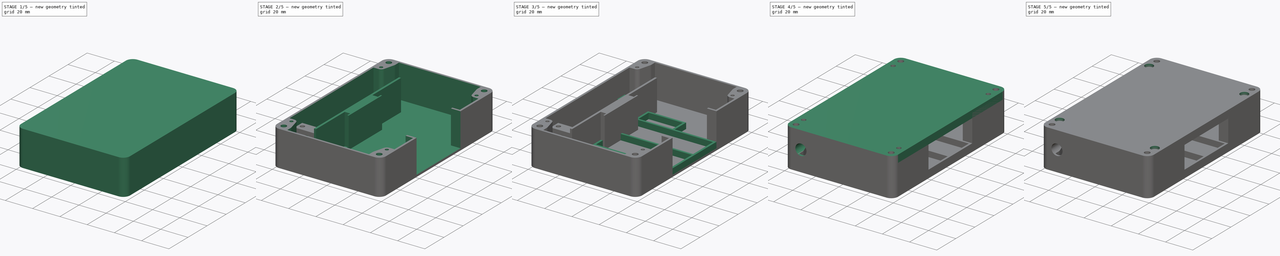
[diagram: build sequence overview — one tinted view per stage of 5, left to right]
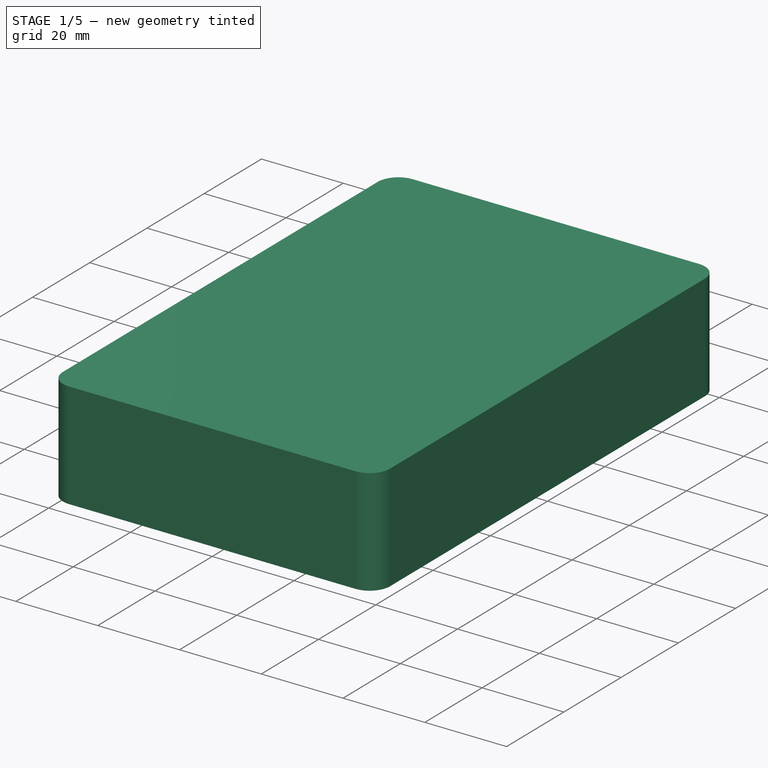
[diagram: stage 1 of 5 — iso view after this stage's code; geometry added in this stage tinted green]
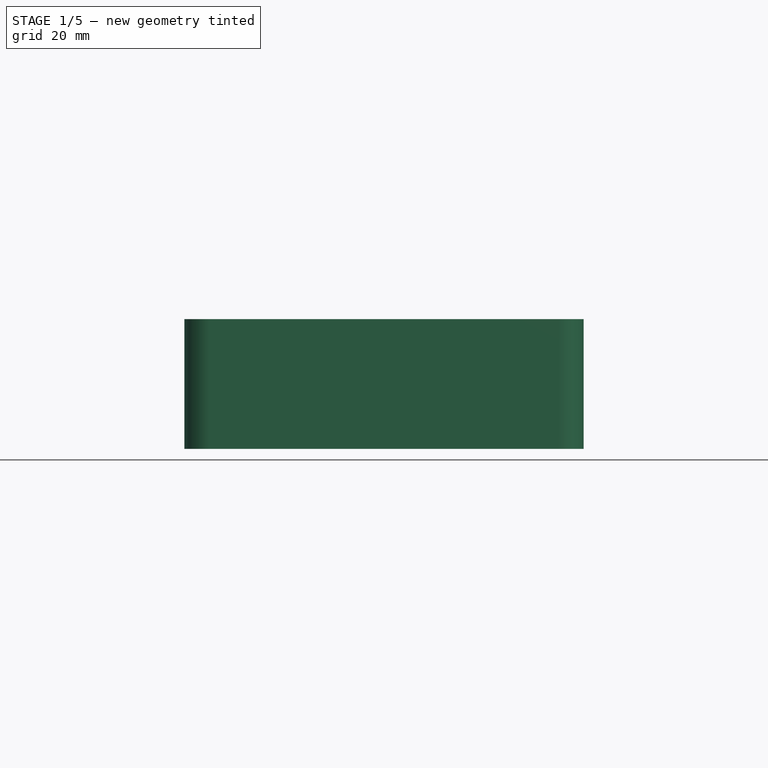
[diagram: stage 1 of 5 — front view after this stage's code; geometry added in this stage tinted green]
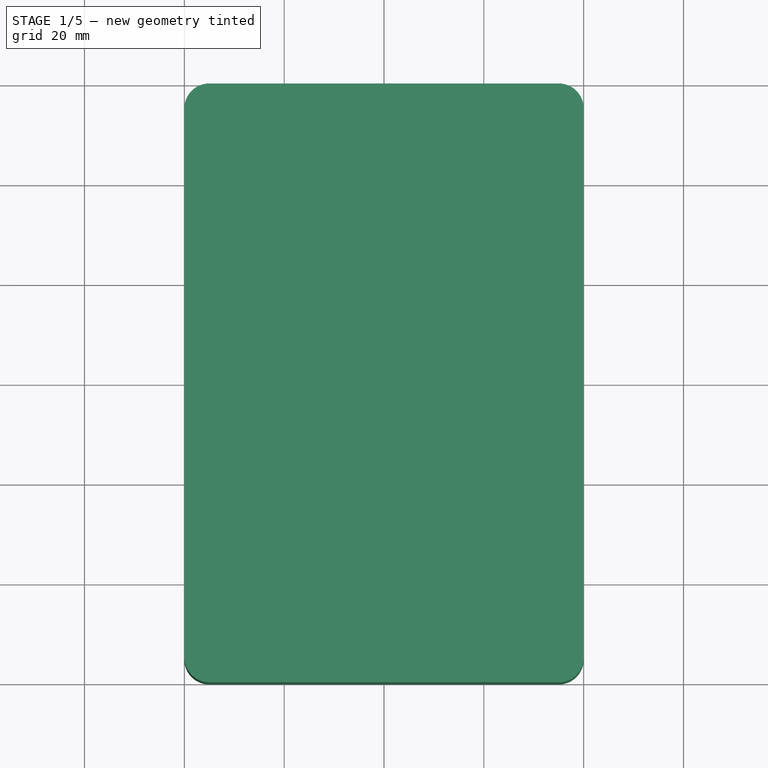
[diagram: stage 1 of 5 — top view after this stage's code; geometry added in this stage tinted green]
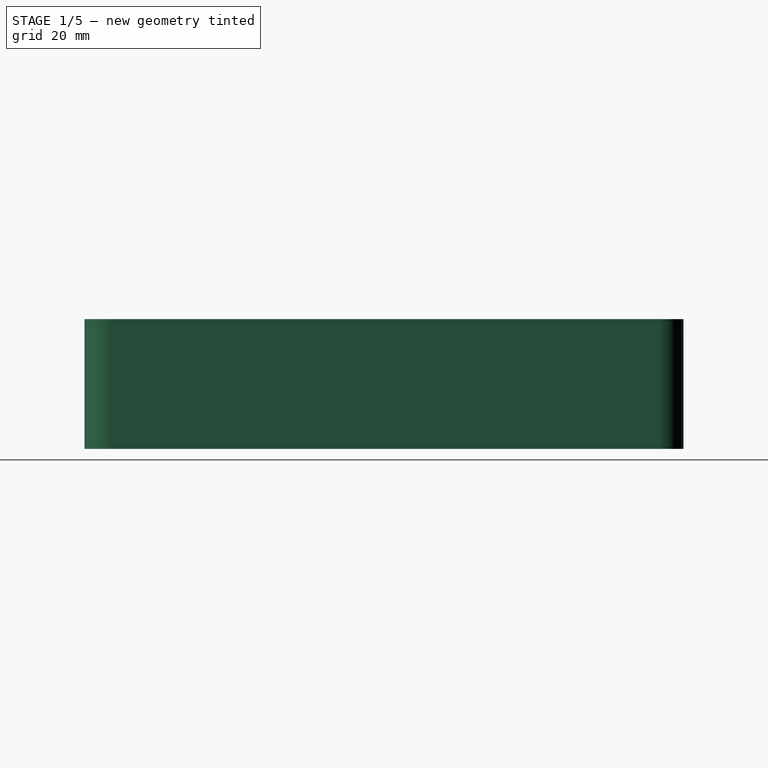
[diagram: stage 1 of 5 — right view after this stage's code; geometry added in this stage tinted green]
FCSTD DOCUMENT  (FreeCAD 0.16R6692 (Git))
Label: CircuitBreakerCover
License: All rights reserved
LicenseURL: http://en.wikipedia.org/wiki/All_rights_reserved
objects: Sketcher::SketchObject×16, PartDesign::Pocket×9, PartDesign::Pad×7, App::DocumentObjectGroup×3, PartDesign::Chamfer×1, Part::FeaturePython×1
note: 50 computed .brp shape members not serialized (recipe doc carries the construction recipe); baked Part::Feature solids carry a one-line shape summary decoded from their .brp

FEATURE [Sketcher::SketchObject] Sketch  label="1_BodyBase_Sketch"
  sketch-geometry (8):
    g0: LineSegment StartX=-35 StartY=60 StartZ=0 EndX=35 EndY=60 EndZ=0
    g1: LineSegment StartX=40 StartY=55 StartZ=0 EndX=40 EndY=-55 EndZ=0
    g2: LineSegment StartX=35 StartY=-60 StartZ=0 EndX=-35 EndY=-60 EndZ=0
    g3: LineSegment StartX=-40 StartY=-55 StartZ=0 EndX=-40 EndY=55 EndZ=0
    g4: ArcOfCircle CenterX=-35 CenterY=55 CenterZ=0 NormalX=0 NormalY=0 NormalZ=1 Radius=5 StartAngle=1.5708 EndAngle=3.14159
    g5: ArcOfCircle CenterX=35 CenterY=55 CenterZ=0 NormalX=0 NormalY=0 NormalZ=1 Radius=5 StartAngle=0 EndAngle=1.5708
    g6: ArcOfCircle CenterX=-35 CenterY=-55 CenterZ=0 NormalX=0 NormalY=0 NormalZ=1 Radius=5 StartAngle=3.14159 EndAngle=4.71239
    g7: ArcOfCircle CenterX=35 CenterY=-55 CenterZ=0 NormalX=0 NormalY=0 NormalZ=1 Radius=5 StartAngle=4.71239 EndAngle=6.28319
  constraints (20):
    c: Horizontal(g0)
    c: Horizontal(g2)
    c: Vertical(g1)
    c: Vertical(g3)
    c: Tangent(g0,g4) = 1.5708
    c: Tangent(g3,g4) = 1.5708
    c: Tangent(g0,g5) = 1.5708
    c: Tangent(g1,g5) = 1.5708
    c: Tangent(g3,g6) = 1.5708
    c: Tangent(g2,g6) = 1.5708
    c: Tangent(g2,g7) = 1.5708
    c: Tangent(g1,g7) = 1.5708
    c: Radius(g4) = 5
    c: Equal(g4,g5)
    c: Equal(g4,g7)
    c: Equal(g4,g6)
    c: Symmetric(g2,g2,g-2)
    c: Symmetric(g3,g3,g-1)
    c: DistanceY(g2,g0) = 120
    c: DistanceX(g3,g1) = 80
FEATURE [PartDesign::Pad] Pad  label="1_BodyBase_Pad"
  Length = 26
  Length2 = 100
  Sketch = -> Sketch
  Type = 0
FEATURE [Sketcher::SketchObject] Sketch005  label="1_ClampBase_Sketch"
  Placement = pos=(0,39,0) rot=(1,0,0;1.5708rad)
  sketch-geometry (6):
    g0: ArcOfCircle CenterX=-29.35 CenterY=11 CenterZ=0 NormalX=0 NormalY=0 NormalZ=1 Radius=4.1 StartAngle=0.246388 EndAngle=2.8952
    g1: LineSegment StartX=-25.3738 StartY=12 StartZ=0 EndX=-20.35 EndY=12 EndZ=0
    g2: LineSegment StartX=-33.3262 StartY=12 StartZ=0 EndX=-38.35 EndY=12 EndZ=0
    g3: LineSegment StartX=-38.35 StartY=12 StartZ=0 EndX=-38.35 EndY=18 EndZ=0
    g4: LineSegment StartX=-38.35 StartY=18 StartZ=0 EndX=-20.35 EndY=18 EndZ=0
    g5: LineSegment StartX=-20.35 StartY=18 StartZ=0 EndX=-20.35 EndY=12 EndZ=0
  constraints (18):
    c: Radius(g0) = 4.1
    c: Coincident(g1,g0)
    c: Coincident(g2,g3)
    c: Coincident(g3,g4)
    c: Horizontal(g4)
    c: Vertical(g3)
    c: Horizontal(g2)
    c: Coincident(g2,g0)
    c: Tangent(g2,g1)
    c: DistanceX(g4) = 18
    c: DistanceY(g0,g2) = 1
    c: Coincident(g5,g4)
    c: Coincident(g5,g1)
    c: Vertical(g5)
    c: Equal(g1,g2)
    c: DistanceY(g0,g4) = 7
    c: DistanceX(g0,g-1) = 29.35
    c: DistanceY(g-1,g0) = 11
FEATURE [PartDesign::Pad] Pad002  label="1_ClampBase_Pad"
  Length = 8
  Length2 = 100
  Placement = pos=(0,39,0) rot=(1,0,0;1.5708rad)
  Sketch = -> Sketch005
  Type = 0
FEATURE [Sketcher::SketchObject] Sketch006  label="2_ScrewHoles_Sketch"
  ExternalGeometry = -> [Pad002]
  Placement = pos=(0,39,18) rot=(0,0,1;3.14159rad)
  Support = -> Pad002 [Face4]
  sketch-geometry (4):
    g0: LineSegment [constr] StartX=20.35 StartY=4 StartZ=0 EndX=38.35 EndY=4 EndZ=0
    g1: Circle CenterX=23.35 CenterY=4 CenterZ=0 NormalX=0 NormalY=0 NormalZ=1 Radius=1.6
    g2: Circle CenterX=35.35 CenterY=4 CenterZ=0 NormalX=0 NormalY=0 NormalZ=1 Radius=1.6
    g3: LineSegment [constr] StartX=29.35 StartY=8 StartZ=0 EndX=29.35 EndY=0 EndZ=0
  constraints (12):
    c: PointOnObject(g0,g-3)
    c: PointOnObject(g0,g-4)
    c: Horizontal(g0)
    c: Symmetric(g-3,g-3,g0)
    c: PointOnObject(g2,g0)
    c: PointOnObject(g1,g0)
    c: Symmetric(g-3,g-4,g3)
    c: Symmetric(g-3,g-4,g3)
    c: Symmetric(g1,g2,g3)
    c: DistanceX(g1,g2) = 12
    c: Equal(g1,g2)
    c: Radius(g2) = 1.6
FEATURE [PartDesign::Pocket] Pocket003  label="2_ScrewHoles_Pocket"
  Length = 5
  Placement = pos=(0,39,0) rot=(1,0,0;1.5708rad)
  Sketch = -> Sketch006
  Type = 1
FEATURE [App::DocumentObjectGroup] Group  label="Body"
  Group = -> [Pad,Pocket,Pocket001,Pad004,Pad005,Pad007,Pocket007,Pocket008,Pocket009,Chamfer]
FEATURE [Part::FeaturePython] Clone  label="3_SecondClamp_Clone"  # Draft clone (typed FeaturePython)
  Objects = -> [Pocket003]
  Placement = pos=(0,-31,0) rot=(1,0,0;1.5708rad)
  Scale = (1,1,1)
FEATURE [App::DocumentObjectGroup] Group002  label="Clamp"
  Group = -> [Pad002,Pocket003,Clone]
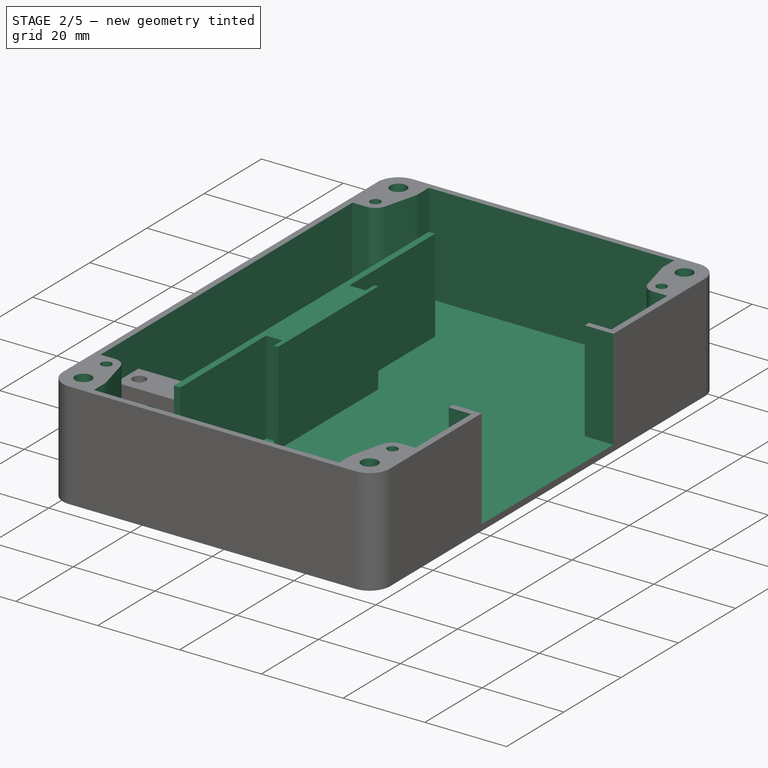
[diagram: stage 2 of 5 — iso view after this stage's code; geometry added in this stage tinted green]
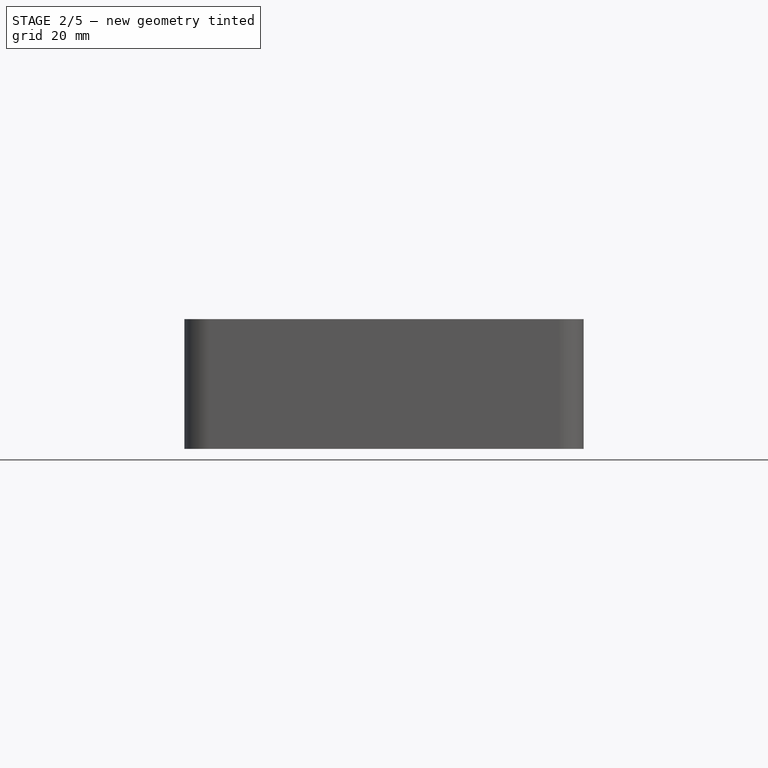
[diagram: stage 2 of 5 — front view after this stage's code; geometry added in this stage tinted green]
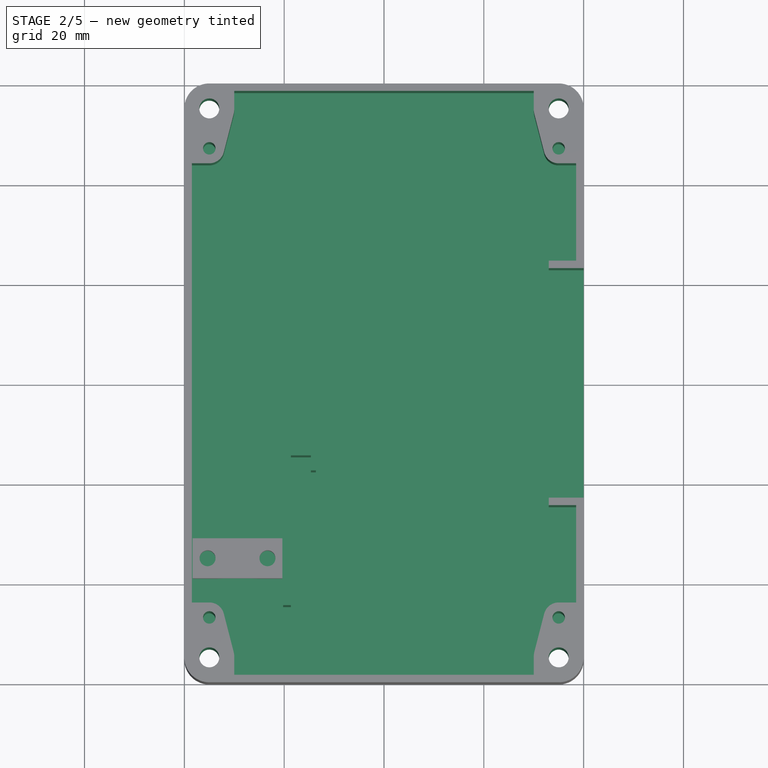
[diagram: stage 2 of 5 — top view after this stage's code; geometry added in this stage tinted green]
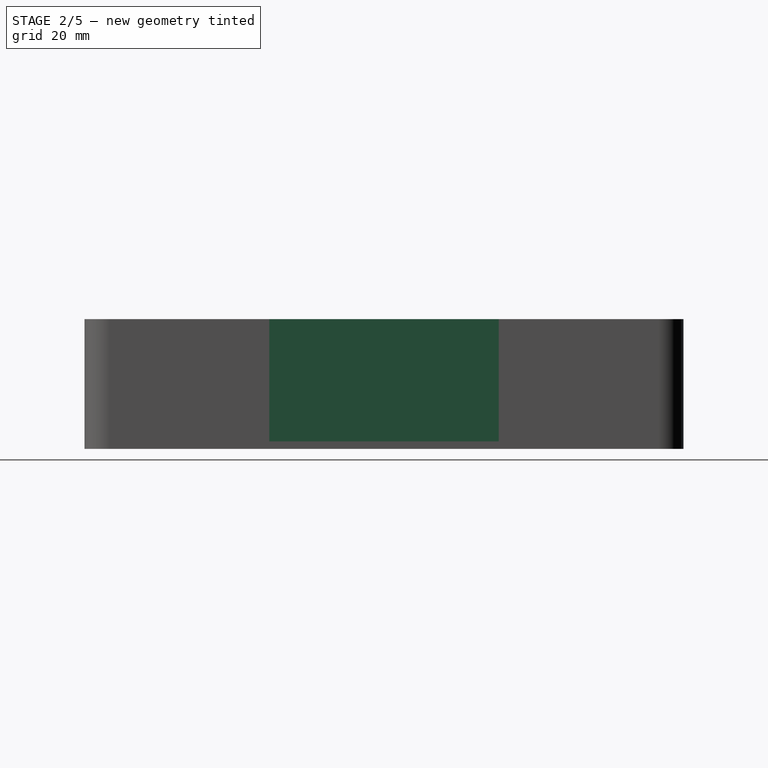
[diagram: stage 2 of 5 — right view after this stage's code; geometry added in this stage tinted green]
FEATURE [Sketcher::SketchObject] Sketch001  label="2_MountingScrewHoles_Sketch"
  ExternalGeometry = -> [Pad]
  Placement = pos=(0,0,26) rot=(0,0,1;0rad)
  Support = -> Pad [Face10]
  sketch-geometry (4):
    g0: Circle CenterX=-35 CenterY=55 CenterZ=0 NormalX=0 NormalY=0 NormalZ=1 Radius=2
    g1: Circle CenterX=35 CenterY=55 CenterZ=0 NormalX=0 NormalY=0 NormalZ=1 Radius=2
    g2: Circle CenterX=-35 CenterY=-55 CenterZ=0 NormalX=0 NormalY=0 NormalZ=1 Radius=2
    g3: Circle CenterX=35 CenterY=-55 CenterZ=0 NormalX=0 NormalY=0 NormalZ=1 Radius=2
  constraints (8):
    c: Coincident(g0,g-3)
    c: Coincident(g1,g-4)
    c: Coincident(g2,g-5)
    c: Coincident(g3,g-6)
    c: Radius(g0) = 2
    c: Equal(g0,g1)
    c: Equal(g0,g2)
    c: Equal(g0,g3)
FEATURE [PartDesign::Pocket] Pocket  label="2_MountingScrewHoles_Pocket"
  Length = 5
  Sketch = -> Sketch001
  Type = 1
FEATURE [Sketcher::SketchObject] Sketch002  label="3_HollowInside_Sketch"
  ExternalGeometry = -> [Pocket]
  Placement = pos=(0,0,26) rot=(0,0,1;0rad)
  Support = -> Pocket [Face5]
  sketch-geometry (36):
    g0: ArcOfCircle CenterX=-35 CenterY=55 CenterZ=0 NormalX=0 NormalY=0 NormalZ=1 Radius=5 StartAngle=6.03051 EndAngle=6.28319
    g1: ArcOfCircle CenterX=35 CenterY=55 CenterZ=0 NormalX=0 NormalY=0 NormalZ=1 Radius=5 StartAngle=3.14159 EndAngle=3.39427
    g2: LineSegment StartX=-38.5 StartY=44 StartZ=0 EndX=-38.5 EndY=-44 EndZ=0
    g3: LineSegment StartX=-38.5 StartY=-44 StartZ=0 EndX=-35 EndY=-44 EndZ=0
    g4: LineSegment StartX=-30 StartY=55 StartZ=0 EndX=-30 EndY=58.5 EndZ=0
    g5: LineSegment StartX=-30 StartY=58.5 StartZ=0 EndX=30 EndY=58.5 EndZ=0
    g6: LineSegment StartX=30 StartY=58.5 StartZ=0 EndX=30 EndY=55 EndZ=0
    g7: LineSegment StartX=-30 StartY=-55 StartZ=0 EndX=-30 EndY=-58.5 EndZ=0
    g8: LineSegment StartX=-30 StartY=-58.5 StartZ=0 EndX=30 EndY=-58.5 EndZ=0
    g9: LineSegment StartX=30 StartY=-58.5 StartZ=0 EndX=30 EndY=-55 EndZ=0
    g10: LineSegment StartX=38.5 StartY=-44 StartZ=0 EndX=35 EndY=-44 EndZ=0
    g11: ArcOfCircle CenterX=-35 CenterY=47 CenterZ=0 NormalX=0 NormalY=0 NormalZ=1 Radius=3 StartAngle=4.71239 EndAngle=6.03051
    g12: LineSegment StartX=-38.5 StartY=44 StartZ=0 EndX=-35 EndY=44 EndZ=0
    g13: LineSegment StartX=-32.0953 StartY=46.25 StartZ=0 EndX=-30.1588 EndY=53.75 EndZ=0
    g14: Circle CenterX=-35 CenterY=47 CenterZ=0 NormalX=0 NormalY=0 NormalZ=1 Radius=1.25
    g15: LineSegment StartX=38.5 StartY=44 StartZ=0 EndX=35 EndY=44 EndZ=0
    g16: ArcOfCircle CenterX=35 CenterY=47 CenterZ=0 NormalX=0 NormalY=0 NormalZ=1 Radius=3 StartAngle=3.39427 EndAngle=4.71239
    g17: LineSegment StartX=32.0953 StartY=46.25 StartZ=0 EndX=30.1588 EndY=53.75 EndZ=0
    g18: Circle CenterX=35 CenterY=47 CenterZ=0 NormalX=0 NormalY=0 NormalZ=1 Radius=1.25
    g19: ArcOfCircle CenterX=-35 CenterY=-47 CenterZ=0 NormalX=0 NormalY=0 NormalZ=1 Radius=3 StartAngle=0.25268 EndAngle=1.5708
    g20: ArcOfCircle CenterX=-35 CenterY=-55 CenterZ=0 NormalX=0 NormalY=0 NormalZ=1 Radius=5 StartAngle=6.28318 EndAngle=6.53586
    g21: LineSegment StartX=-30.1588 StartY=-53.75 StartZ=0 EndX=-32.0953 EndY=-46.25 EndZ=0
    g22: Circle CenterX=-35 CenterY=-47 CenterZ=0 NormalX=0 NormalY=0 NormalZ=1 Radius=1.25
    g23: ArcOfCircle CenterX=35 CenterY=-55 CenterZ=0 NormalX=0 NormalY=0 NormalZ=1 Radius=5 StartAngle=2.88892 EndAngle=3.1416
    g24: ArcOfCircle CenterX=35 CenterY=-47 CenterZ=0 NormalX=0 NormalY=0 NormalZ=1 Radius=3 StartAngle=1.5708 EndAngle=2.88891
    g25: LineSegment StartX=30.1588 StartY=-53.75 StartZ=0 EndX=32.0953 EndY=-46.25 EndZ=0
    g26: Circle CenterX=35 CenterY=-47 CenterZ=0 NormalX=0 NormalY=0 NormalZ=1 Radius=1.25
    g27: LineSegment StartX=33 StartY=23 StartZ=0 EndX=41 EndY=23 EndZ=0
    g28: LineSegment StartX=41 StartY=23 StartZ=0 EndX=41 EndY=-23 EndZ=0
    g29: LineSegment StartX=41 StartY=-23 StartZ=0 EndX=33 EndY=-23 EndZ=0
    g30: LineSegment StartX=38.5 StartY=44 StartZ=0 EndX=38.5 EndY=24.5 EndZ=0
    g31: LineSegment StartX=38.5 StartY=24.5 StartZ=0 EndX=33 EndY=24.5 EndZ=0
    g32: LineSegment StartX=33 StartY=24.5 StartZ=0 EndX=33 EndY=23 EndZ=0
    g33: LineSegment StartX=33 StartY=-23 StartZ=0 EndX=33 EndY=-24.5 EndZ=0
    g34: LineSegment StartX=33 StartY=-24.5 StartZ=0 EndX=38.5 EndY=-24.5 EndZ=0
    g35: LineSegment StartX=38.5 StartY=-24.5 StartZ=0 EndX=38.5 EndY=-44 EndZ=0
  constraints (105):
    c: Coincident(g0,g-3)
    c: Coincident(g1,g-4)
    c: Coincident(g2,g3)
    c: Horizontal(g3)
    c: Vertical(g4)
    c: Coincident(g4,g5)
    c: Horizontal(g5)
    c: Coincident(g5,g6)
    c: Coincident(g6,g1)
    c: Vertical(g6)
    c: Coincident(g4,g0)
    c: Vertical(g7)
    c: Horizontal(g8)
    c: Coincident(g8,g9)
    c: Vertical(g9)
    c: Horizontal(g10)
    c: Radius(g0) = 5
    c: Equal(g0,g1)
    c: DistanceY(g-7,g7) = 1.5
    c: Tangent(g0,g4)
    c: Tangent(g1,g6)
    c: Symmetric(g2,g15,g-2)
    c: DistanceX(g15,g-8) = 1.5
    c: DistanceY(g4,g-9) = 1.5
    c: Coincident(g12,g2)
    c: Coincident(g12,g11)
    c: Horizontal(g12)
    c: Tangent(g12,g11)
    c: Coincident(g13,g0)
    c: Radius(g11) = 3
    c: Coincident(g11,g13)
    c: Tangent(g11,g13)
    c: Tangent(g0,g13)
    c: DistanceX(g12) = 3.5
    c: Coincident(g14,g11)
    c: Radius(g14) = 1.25
    c: Horizontal(g15)
    c: Coincident(g16,g15)
    c: Coincident(g17,g16)
    c: Coincident(g17,g1)
    c: Tangent(g17,g1)
    c: Tangent(g17,g16)
    c: Equal(g11,g16)
    c: Tangent(g16,g15)
    c: Coincident(g18,g16)
    c: Equal(g18,g14)
    c: Coincident(g19,g3)
    c: Coincident(g20,g-5)
    c: Coincident(g20,g7)
    c: Coincident(g21,g20)
    c: Coincident(g21,g19)
    c: Equal(g19,g11)
    c: Equal(g20,g0)
    c: Tangent(g3,g19)
    c: Tangent(g19,g21)
    c: Tangent(g21,g20)
    c: Coincident(g22,g19)
    c: Equal(g22,g18)
    c: Tangent(g7,g20)
    c: Equal(g15,g12)
    c: Equal(g3,g15)
    c: DistanceY(g11,g0) = 8
    c: Symmetric(g2,g2,g-1)
    c: Equal(g10,g3)
    c: Coincident(g23,g-6)
    c: Coincident(g23,g9)
    c: Coincident(g24,g10)
    c: Coincident(g25,g23)
    c: Coincident(g25,g24)
    c: Tangent(g23,g25)
    c: Tangent(g23,g9)
    c: Tangent(g25,g24)
    c: Tangent(g24,g10)
    c: Equal(g24,g19)
    c: Equal(g23,g20)
    c: Symmetric(g2,g10,g-2)
    c: Coincident(g26,g24)
    c: Equal(g26,g22)
    c: Coincident(g8,g7)
    c: Coincident(g28,g27)
    c: Vertical(g28)
    c: Coincident(g29,g28)
    c: Horizontal(g27)
    c: Horizontal(g29)
    c: Equal(g29,g27)
    c: Symmetric(g29,g27,g-1)
    c: DistanceX(g-8,g28) = 1
    c: DistanceY(g28,g28) = 46
    c: Coincident(g15,g30)
    c: Vertical(g30)
    c: Coincident(g30,g31)
    c: Horizontal(g31)
    c: Coincident(g31,g32)
    c: Vertical(g32)
    c: Coincident(g32,g27)
    c: DistanceX(g31,g-8) = 7
    c: DistanceY(g32,g32) = 1.5
    c: Coincident(g33,g34)
    c: Horizontal(g34)
    c: Coincident(g34,g35)
    c: Coincident(g35,g10)
    c: Vertical(g35)
    c: Equal(g33,g32)
    c: Coincident(g33,g29)
    c: Vertical(g33)
FEATURE [PartDesign::Pocket] Pocket001  label="3_HollowInside_Pocket"
  Length = 24.5
  Sketch = -> Sketch002
  Type = 0
FEATURE [Sketcher::SketchObject] Sketch009  label="4_CircuitBreakerMount_Sketch"
  ExternalGeometry = -> [Pocket,Pocket001]
  Placement = pos=(0,0,1.5) rot=(0,0,1;0rad)
  Support = -> Pocket001 [Face50]
  sketch-geometry (12):
    g0: LineSegment StartX=-20.2 StartY=44.5 StartZ=0 EndX=-20.2 EndY=-44.5 EndZ=0
    g1: LineSegment StartX=-20.2 StartY=-44.5 StartZ=0 EndX=-18.65 EndY=-44.5 EndZ=0
    g2: LineSegment StartX=-18.65 StartY=-44.5 StartZ=0 EndX=-18.65 EndY=-14.5 EndZ=0
    g3: LineSegment StartX=-13.65 StartY=-17.5 StartZ=0 EndX=-13.65 EndY=17.5 EndZ=0
    g4: LineSegment StartX=-13.65 StartY=17.5 StartZ=0 EndX=-14.65 EndY=17.5 EndZ=0
    g5: LineSegment StartX=-14.65 StartY=17.5 StartZ=0 EndX=-14.65 EndY=14.5 EndZ=0
    g6: LineSegment StartX=-14.65 StartY=14.5 StartZ=0 EndX=-18.65 EndY=14.5 EndZ=0
    g7: LineSegment StartX=-18.65 StartY=14.5 StartZ=0 EndX=-18.65 EndY=44.5 EndZ=0
    g8: LineSegment StartX=-18.65 StartY=44.5 StartZ=0 EndX=-20.2 EndY=44.5 EndZ=0
    g9: LineSegment StartX=-18.65 StartY=-14.5 StartZ=0 EndX=-14.65 EndY=-14.5 EndZ=0
    g10: LineSegment StartX=-14.65 StartY=-14.5 StartZ=0 EndX=-14.65 EndY=-17.5 EndZ=0
    g11: LineSegment StartX=-14.65 StartY=-17.5 StartZ=0 EndX=-13.65 EndY=-17.5 EndZ=0
  constraints (35):
    c: Coincident(g0,g1)
    c: Horizontal(g1)
    c: Coincident(g1,g2)
    c: Vertical(g2)
    c: Vertical(g3)
    c: Coincident(g3,g4)
    c: Coincident(g4,g5)
    c: Coincident(g5,g6)
    c: Horizontal(g6)
    c: Coincident(g6,g7)
    c: Vertical(g7)
    c: Coincident(g7,g8)
    c: Coincident(g8,g0)
    c: Horizontal(g8)
    c: Symmetric(g0,g0,g-1)
    c: Vertical(g5)
    c: Horizontal(g4)
    c: Equal(g8,g1)
    c: Equal(g2,g7)
    c: DistanceY(g0,g0) = 89
    c: DistanceX(g7,g3) = 5
    c: DistanceX(g4,g4) = 1
    c: DistanceY(g3,g3) = 35
    c: Symmetric(g3,g3,g-1)
    c: Coincident(g2,g9)
    c: Horizontal(g9)
    c: Coincident(g9,g10)
    c: Vertical(g10)
    c: Coincident(g10,g11)
    c: Coincident(g11,g3)
    c: Horizontal(g11)
    c: Equal(g11,g4)
    c: DistanceY(g2,g6) = 29
    c: DistanceX(g7,g-3) = 58.65
    c: DistanceX(g-4,g0) = 18.3
FEATURE [PartDesign::Pad] Pad004  label="4_CircuitBreakerMount_Pad"
  Length = 22.75
  Length2 = 100
  Sketch = -> Sketch009
  Type = 0
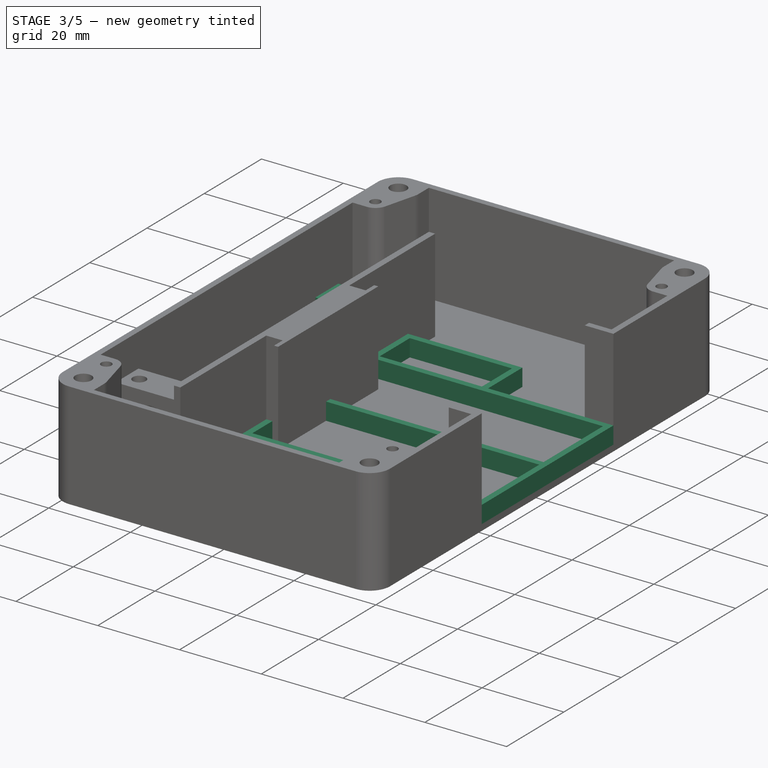
[diagram: stage 3 of 5 — iso view after this stage's code; geometry added in this stage tinted green]
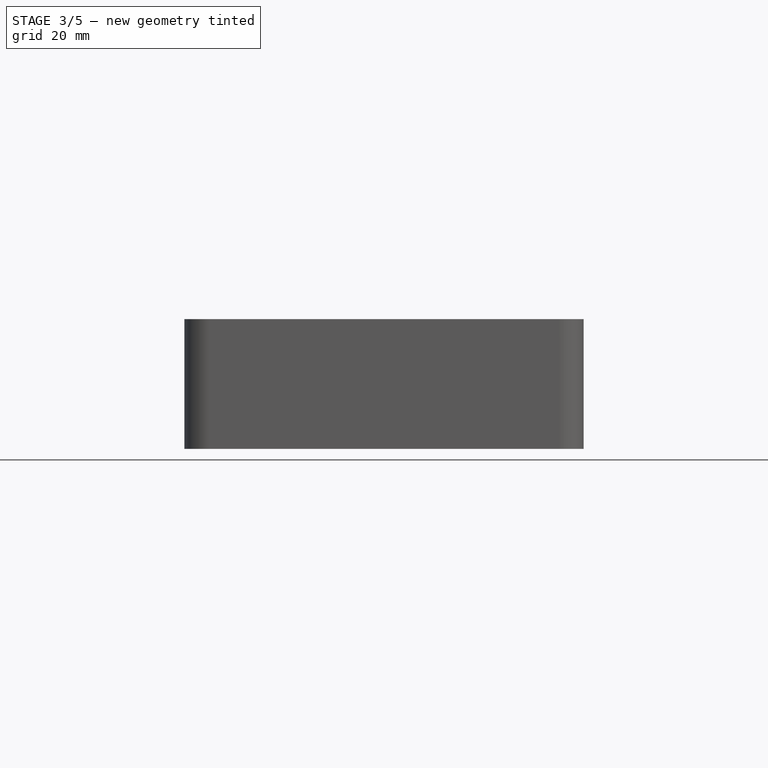
[diagram: stage 3 of 5 — front view after this stage's code; geometry added in this stage tinted green]
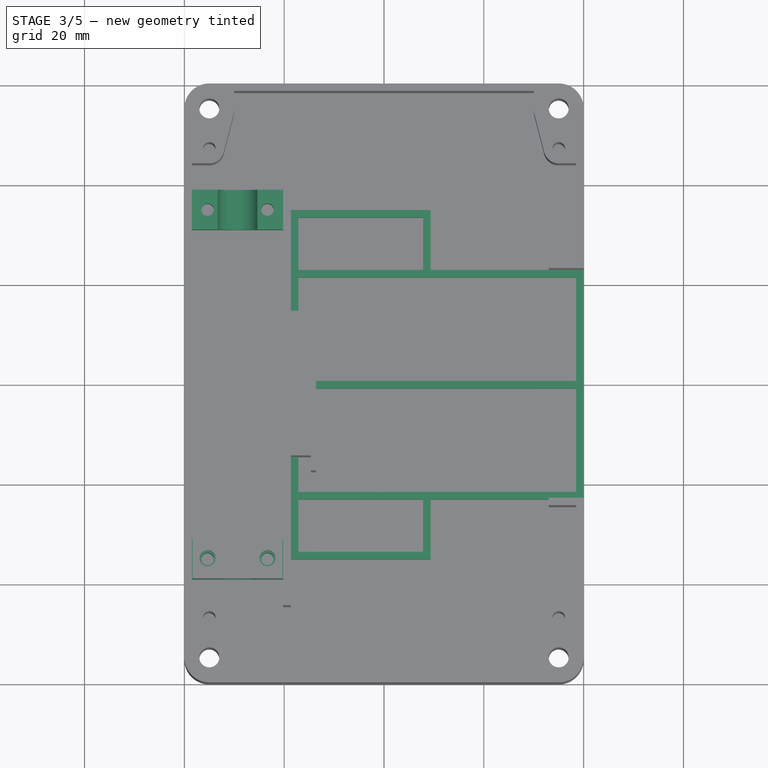
[diagram: stage 3 of 5 — top view after this stage's code; geometry added in this stage tinted green]
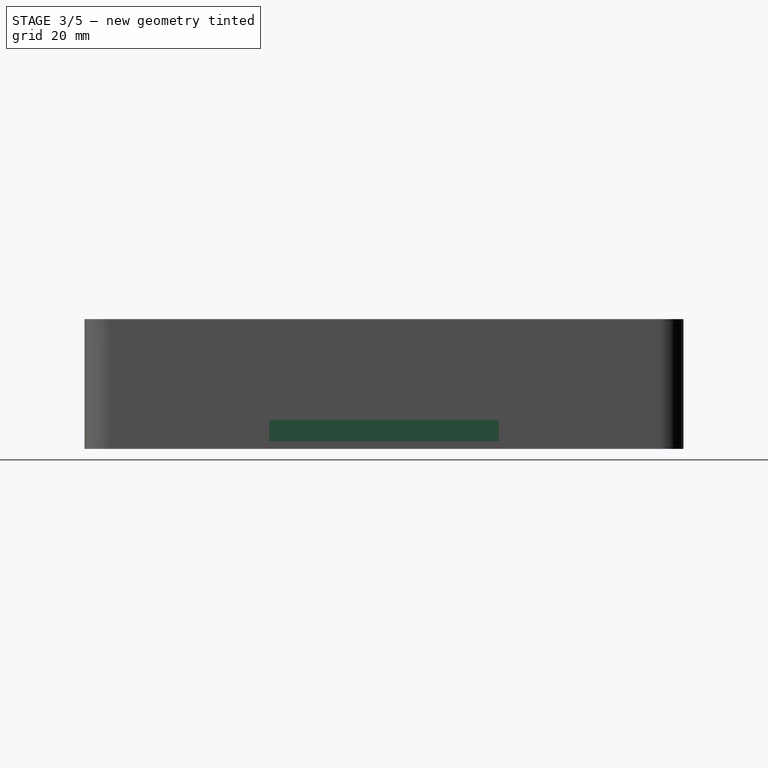
[diagram: stage 3 of 5 — right view after this stage's code; geometry added in this stage tinted green]
FEATURE [Sketcher::SketchObject] Sketch010  label="5_CircuitBreakerSupport_Sketch"
  ExternalGeometry = -> [Pad004]
  Placement = pos=(0,0,1.5) rot=(0,0,1;0rad)
  Support = -> Pad004 [Face50]
  sketch-geometry (30):
    g0: LineSegment StartX=40 StartY=23 StartZ=0 EndX=40 EndY=-23 EndZ=0
    g1: LineSegment StartX=-18.65 StartY=-35 StartZ=0 EndX=-18.65 EndY=35 EndZ=0
    g2: LineSegment StartX=-17.15 StartY=21.5 StartZ=0 EndX=38.5 EndY=21.5 EndZ=0
    g3: LineSegment StartX=38.5 StartY=21.5 StartZ=0 EndX=38.5 EndY=0.75 EndZ=0
    g4: LineSegment StartX=38.5 StartY=0.75 StartZ=0 EndX=-17.15 EndY=0.75 EndZ=0
    g5: LineSegment StartX=-17.15 StartY=0.75 StartZ=0 EndX=-17.15 EndY=21.5 EndZ=0
    g6: LineSegment StartX=-17.15 StartY=-0.75 StartZ=0 EndX=38.5 EndY=-0.75 EndZ=0
    g7: LineSegment StartX=38.5 StartY=-0.75 StartZ=0 EndX=38.5 EndY=-21.5 EndZ=0
    g8: LineSegment StartX=38.5 StartY=-21.5 StartZ=0 EndX=-17.15 EndY=-21.5 EndZ=0
    g9: LineSegment StartX=-17.15 StartY=-21.5 StartZ=0 EndX=-17.15 EndY=-0.75 EndZ=0
    g10: LineSegment StartX=-18.65 StartY=35 StartZ=0 EndX=9.35 EndY=35 EndZ=0
    g11: LineSegment StartX=9.35 StartY=35 StartZ=0 EndX=9.35 EndY=23 EndZ=0
    g12: LineSegment StartX=9.35 StartY=23 StartZ=0 EndX=40 EndY=23 EndZ=0
    g13: LineSegment StartX=-17.15 StartY=33.5 StartZ=0 EndX=7.85 EndY=33.5 EndZ=0
    g14: LineSegment StartX=7.85 StartY=33.5 StartZ=0 EndX=7.85 EndY=23 EndZ=0
    g15: LineSegment StartX=7.85 StartY=23 StartZ=0 EndX=-17.15 EndY=23 EndZ=0
    g16: LineSegment StartX=-17.15 StartY=23 StartZ=0 EndX=-17.15 EndY=33.5 EndZ=0
    g17: LineSegment [constr] StartX=-17.15 StartY=33.5 StartZ=0 EndX=-17.15 EndY=35 EndZ=0
    g18: LineSegment [constr] StartX=7.85 StartY=33.5 StartZ=0 EndX=9.35 EndY=33.5 EndZ=0
    g19: LineSegment [constr] StartX=38.5 StartY=21.5 StartZ=0 EndX=38.5 EndY=23 EndZ=0
    g20: LineSegment [constr] StartX=38.5 StartY=-0.75 StartZ=0 EndX=38.5 EndY=0.75 EndZ=0
    g21: LineSegment StartX=-18.65 StartY=-35 StartZ=0 EndX=9.35 EndY=-35 EndZ=0
    g22: LineSegment StartX=9.35 StartY=-35 StartZ=0 EndX=9.35 EndY=-23 EndZ=0
    g23: LineSegment StartX=9.35 StartY=-23 StartZ=0 EndX=40 EndY=-23 EndZ=0
    g24: LineSegment StartX=-17.15 StartY=-23 StartZ=0 EndX=7.85 EndY=-23 EndZ=0
    g25: LineSegment StartX=7.85 StartY=-23 StartZ=0 EndX=7.85 EndY=-33.5 EndZ=0
    g26: LineSegment StartX=7.85 StartY=-33.5 StartZ=0 EndX=-17.15 EndY=-33.5 EndZ=0
    g27: LineSegment StartX=-17.15 StartY=-33.5 StartZ=0 EndX=-17.15 EndY=-23 EndZ=0
    g28: LineSegment [constr] StartX=-17.15 StartY=23 StartZ=0 EndX=-18.65 EndY=23 EndZ=0
    g29: LineSegment [constr] StartX=38.5 StartY=21.5 StartZ=0 EndX=40 EndY=21.5 EndZ=0
  constraints (83):
    c: Vertical(g0)
    c: Vertical(g1)
    c: Coincident(g2,g3)
    c: Coincident(g3,g4)
    c: Coincident(g4,g5)
    c: Coincident(g5,g2)
    c: Horizontal(g2)
    c: Horizontal(g4)
    c: Vertical(g3)
    c: Vertical(g5)
    c: Coincident(g6,g7)
    c: Coincident(g7,g8)
    c: Coincident(g8,g9)
    c: Coincident(g9,g6)
    c: Horizontal(g6)
    c: Horizontal(g8)
    c: Vertical(g7)
    c: Vertical(g9)
    c: Coincident(g0,g-3)
    c: PointOnObject(g1,g-4)
    c: Symmetric(g4,g6,g-1)
    c: Symmetric(g2,g7,g-1)
    c: DistanceY(g2,g0) = 1.5
    c: Coincident(g1,g10)
    c: Horizontal(g10)
    c: Coincident(g10,g11)
    c: Vertical(g11)
    c: Coincident(g11,g12)
    c: Coincident(g12,g0)
    c: Horizontal(g12)
    c: Coincident(g13,g14)
    c: Coincident(g14,g15)
    c: Coincident(g15,g16)
    c: Coincident(g16,g13)
    c: Horizontal(g13)
    c: Horizontal(g15)
    c: Vertical(g14)
    c: Vertical(g16)
    c: Coincident(g17,g13)
    c: PointOnObject(g17,g10)
    c: Vertical(g17)
    c: Coincident(g18,g13)
    c: PointOnObject(g18,g11)
    c: Horizontal(g18)
    c: Coincident(g19,g2)
    c: PointOnObject(g19,g12)
    c: Vertical(g19)
    c: PointOnObject(g14,g12)
    c: Coincident(g20,g6)
    c: Coincident(g20,g3)
    c: Equal(g17,g18)
    c: Equal(g18,g19)
    c: Equal(g19,g20)
    c: Coincident(g1,g21)
    c: Coincident(g21,g22)
    c: Coincident(g22,g23)
    c: Coincident(g23,g0)
    c: Horizontal(g23)
    c: Vertical(g22)
    c: Horizontal(g21)
    c: Symmetric(g21,g10,g-1)
    c: Coincident(g24,g25)
    c: Coincident(g25,g26)
    c: Coincident(g26,g27)
    c: Coincident(g27,g24)
    c: Horizontal(g24)
    c: Horizontal(g26)
    c: Vertical(g25)
    c: Vertical(g27)
    c: Symmetric(g24,g15,g-1)
    c: Symmetric(g25,g13,g-1)
    c: DistanceY(g1,g1) = 70
    c: PointOnObject(g22,g24)
    c: DistanceX(g21,g21) = 28
    c: PointOnObject(g24,g9)
    c: Coincident(g28,g15)
    c: Horizontal(g28)
    c: PointOnObject(g28,g-4)
    c: Equal(g17,g28)
    c: Coincident(g29,g2)
    c: PointOnObject(g29,g-3)
    c: Horizontal(g29)
    c: Equal(g29,g19)
FEATURE [PartDesign::Pad] Pad005  label="5_CircuitBreakerSupport_Pad"
  Length = 4.25
  Length2 = 100
  Sketch = -> Sketch010
  Type = 0
FEATURE [App::DocumentObjectGroup] Group003  label="Lid"
  Group = -> [Pad003,Pocket004,Pocket005,Pocket006,Pad006]
FEATURE [Sketcher::SketchObject] Sketch014  label="6_ClampsBase_Sketch"
  ExternalGeometry = -> [Pad005]
  Placement = pos=(0,0,1.5) rot=(0,0,1;0rad)
  Support = -> Pad005 [Face52]
  sketch-geometry (8):
    g0: LineSegment StartX=-38.5 StartY=39 StartZ=0 EndX=-20.2 EndY=39 EndZ=0
    g1: LineSegment StartX=-20.2 StartY=39 StartZ=0 EndX=-20.2 EndY=31 EndZ=0
    g2: LineSegment StartX=-20.2 StartY=31 StartZ=0 EndX=-38.5 EndY=31 EndZ=0
    g3: LineSegment StartX=-38.5 StartY=31 StartZ=0 EndX=-38.5 EndY=39 EndZ=0
    g4: LineSegment StartX=-38.5 StartY=-31 StartZ=0 EndX=-20.2 EndY=-31 EndZ=0
    g5: LineSegment StartX=-20.2 StartY=-31 StartZ=0 EndX=-20.2 EndY=-39 EndZ=0
    g6: LineSegment StartX=-20.2 StartY=-39 StartZ=0 EndX=-38.5 EndY=-39 EndZ=0
    g7: LineSegment StartX=-38.5 StartY=-39 StartZ=0 EndX=-38.5 EndY=-31 EndZ=0
  constraints (23):
    c: Coincident(g0,g1)
    c: Coincident(g1,g2)
    c: Coincident(g2,g3)
    c: Horizontal(g0)
    c: Horizontal(g2)
    c: Vertical(g1)
    c: Vertical(g3)
    c: Coincident(g4,g5)
    c: Coincident(g5,g6)
    c: Coincident(g7,g4)
    c: Horizontal(g4)
    c: Horizontal(g6)
    c: Vertical(g5)
    c: Vertical(g7)
    c: PointOnObject(g1,g-4)
    c: PointOnObject(g4,g-4)
    c: Equal(g3,g7)
    c: DistanceY(g3,g3) = 8
    c: Coincident(g0,g3)
    c: Coincident(g6,g7)
    c: Symmetric(g2,g4,g-1)
    c: PointOnObject(g0,g-3)
    c: DistanceY(g0,g-3) = 5
FEATURE [PartDesign::Pad] Pad007  label="6_ClampsBase_Pad"
  Length = 8.5
  Length2 = 100
  Sketch = -> Sketch014
  Type = 0
FEATURE [Sketcher::SketchObject] Sketch015  label="7_ClampCableGroove_Sketch"
  ExternalGeometry = -> [Pad007]
  Placement = pos=(0,-39,0) rot=(1,0,0;1.5708rad)
  Support = -> Pad007 [Face55]
  sketch-geometry (2):
    g0: Circle CenterX=-29.35 CenterY=11 CenterZ=0 NormalX=0 NormalY=0 NormalZ=1 Radius=4.1
    g1: LineSegment [constr] StartX=-29.35 StartY=11 StartZ=0 EndX=-29.35 EndY=10 EndZ=0
  constraints (6):
    c: Coincident(g1,g0)
    c: Vertical(g1)
    c: PointOnObject(g1,g-3)
    c: Symmetric(g-3,g-3,g1)
    c: DistanceY(g1,g1) = 1
    c: Radius(g0) = 4.1
FEATURE [PartDesign::Pocket] Pocket007  label="7_ClampCableGroove_Pocket"
  Length = 80
  Sketch = -> Sketch015
  Type = 0
FEATURE [Sketcher::SketchObject] Sketch016  label="8_ClampScrewHoles_Sketch"
  ExternalGeometry = -> [Pocket007]
  Placement = pos=(0,0,10) rot=(0,0,1;0rad)
  Support = -> Pocket007 [Face60]
  sketch-geometry (6):
    g0: Circle CenterX=-35.35 CenterY=35 CenterZ=0 NormalX=0 NormalY=0 NormalZ=1 Radius=1.25
    g1: Circle CenterX=-35.35 CenterY=-35 CenterZ=0 NormalX=0 NormalY=0 NormalZ=1 Radius=1.25
    g2: Circle CenterX=-23.35 CenterY=-35 CenterZ=0 NormalX=0 NormalY=0 NormalZ=1 Radius=1.25
    g3: Circle CenterX=-23.35 CenterY=35 CenterZ=0 NormalX=0 NormalY=0 NormalZ=1 Radius=1.25
    g4: LineSegment [constr] StartX=-29.35 StartY=39 StartZ=0 EndX=-29.35 EndY=31 EndZ=0
    g5: LineSegment [constr] StartX=-35.35 StartY=39 StartZ=0 EndX=-35.35 EndY=31 EndZ=0
  constraints (16):
    c: Vertical(g4)
    c: Symmetric(g-3,g-5,g4)
    c: Symmetric(g-4,g-6,g4)
    c: Symmetric(g0,g3,g4)
    c: Symmetric(g0,g1,g-1)
    c: Symmetric(g2,g3,g-1)
    c: Radius(g0) = 1.25
    c: Equal(g0,g3)
    c: Equal(g0,g1)
    c: Equal(g0,g2)
    c: DistanceX(g1,g2) = 12
    c: PointOnObject(g5,g-3)
    c: PointOnObject(g5,g-4)
    c: Vertical(g5)
    c: PointOnObject(g0,g5)
    c: Symmetric(g5,g5,g0)
FEATURE [PartDesign::Pocket] Pocket008  label="8_ClampScrewHoles_Pocket"
  Length = 8.5
  Sketch = -> Sketch016
  Type = 0
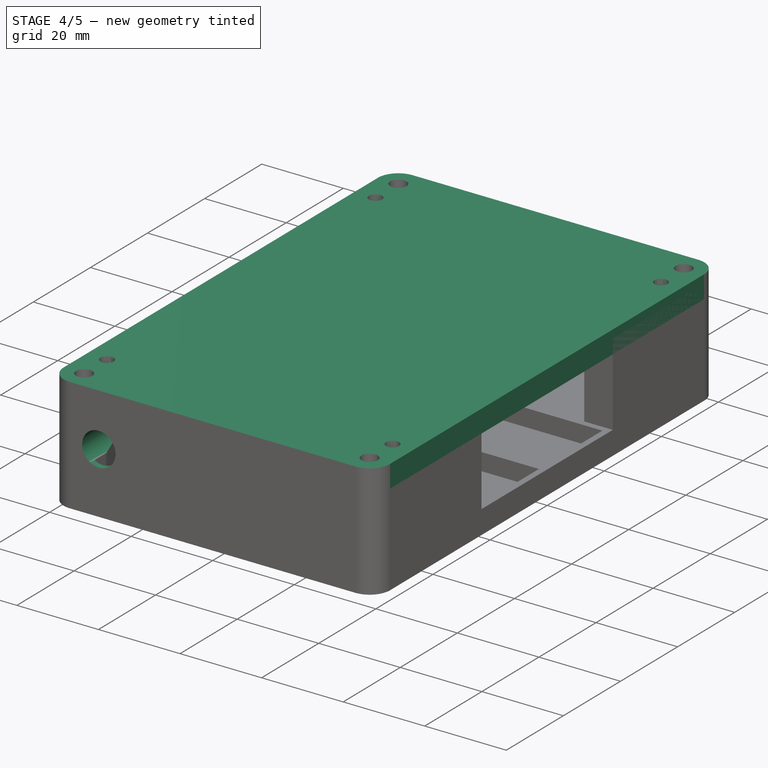
[diagram: stage 4 of 5 — iso view after this stage's code; geometry added in this stage tinted green]
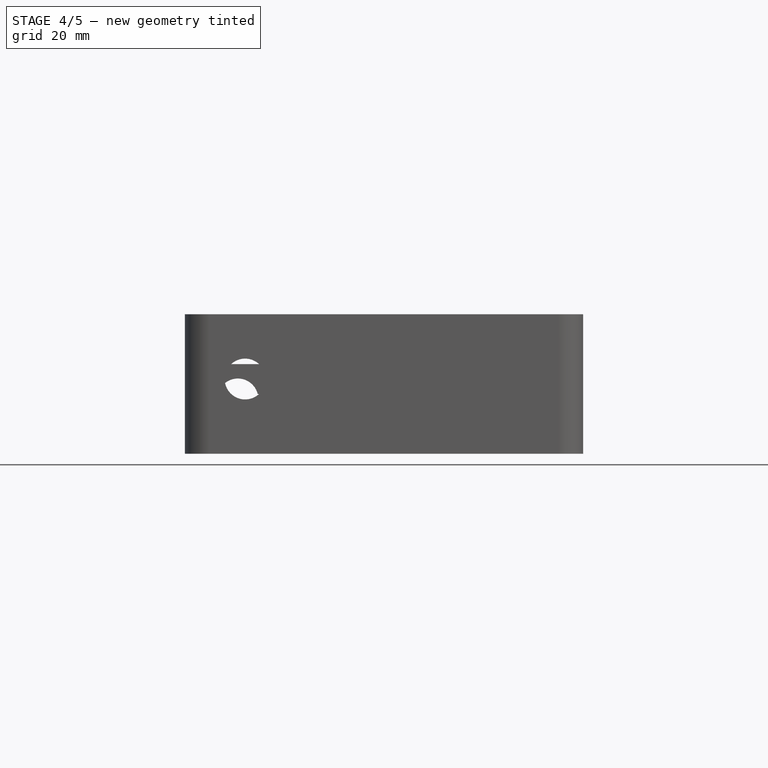
[diagram: stage 4 of 5 — front view after this stage's code; geometry added in this stage tinted green]
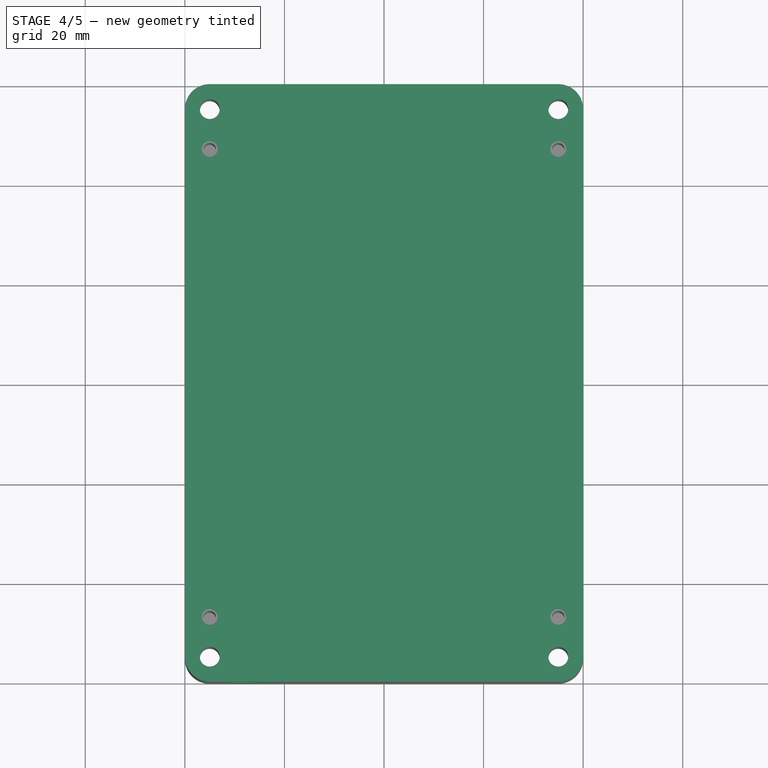
[diagram: stage 4 of 5 — top view after this stage's code; geometry added in this stage tinted green]
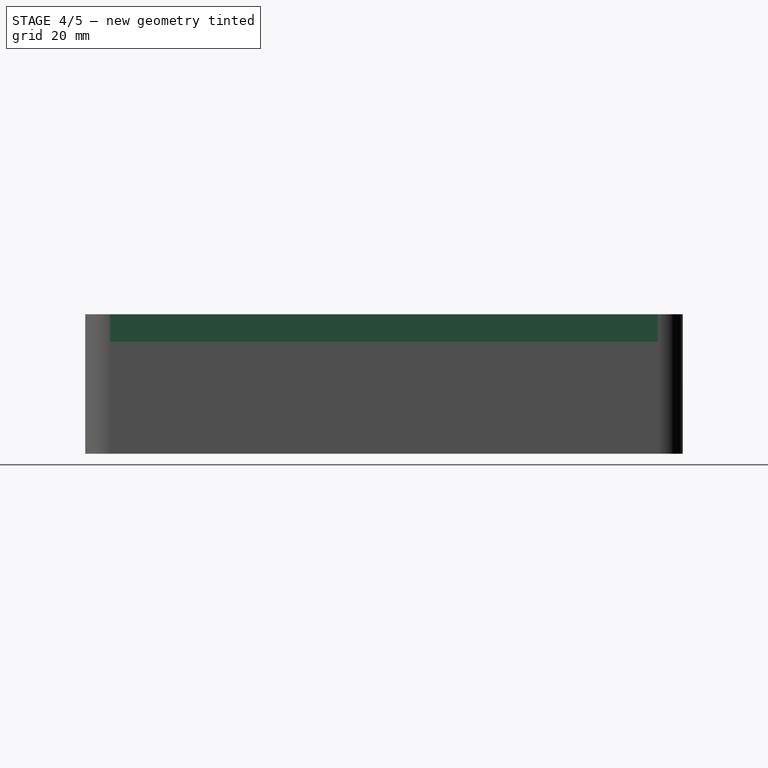
[diagram: stage 4 of 5 — right view after this stage's code; geometry added in this stage tinted green]
FEATURE [Sketcher::SketchObject] Sketch007  label="1_LidBase_Sketch"
  Placement = pos=(0,0,22.5) rot=(0,0,1;0rad)
  sketch-geometry (17):
    g0: LineSegment StartX=-35 StartY=60 StartZ=0 EndX=35 EndY=60 EndZ=0
    g1: LineSegment StartX=40 StartY=55 StartZ=0 EndX=40 EndY=-55 EndZ=0
    g2: LineSegment StartX=35 StartY=-60 StartZ=0 EndX=-35 EndY=-60 EndZ=0
    g3: LineSegment StartX=-40 StartY=-55 StartZ=0 EndX=-40 EndY=55 EndZ=0
    g4: ArcOfCircle CenterX=-35 CenterY=55 CenterZ=0 NormalX=0 NormalY=0 NormalZ=1 Radius=5 StartAngle=1.5708 EndAngle=3.14159
    g5: ArcOfCircle CenterX=35 CenterY=55 CenterZ=0 NormalX=0 NormalY=0 NormalZ=1 Radius=5 StartAngle=0 EndAngle=1.5708
    g6: ArcOfCircle CenterX=35 CenterY=-55 CenterZ=0 NormalX=0 NormalY=0 NormalZ=1 Radius=5 StartAngle=4.71239 EndAngle=6.28319
    g7: ArcOfCircle CenterX=-35 CenterY=-55 CenterZ=0 NormalX=0 NormalY=0 NormalZ=1 Radius=5 StartAngle=3.14159 EndAngle=4.71239
    g8: Circle CenterX=-35 CenterY=55 CenterZ=0 NormalX=0 NormalY=0 NormalZ=1 Radius=2
    g9: Circle CenterX=-35 CenterY=-55 CenterZ=0 NormalX=0 NormalY=0 NormalZ=1 Radius=2
    g10: Circle CenterX=35 CenterY=55 CenterZ=0 NormalX=0 NormalY=0 NormalZ=1 Radius=2
    g11: Circle CenterX=35 CenterY=-55 CenterZ=0 NormalX=0 NormalY=0 NormalZ=1 Radius=2
    g12: Circle CenterX=-35 CenterY=47 CenterZ=0 NormalX=0 NormalY=0 NormalZ=1 Radius=1.6
    g13: Circle CenterX=35 CenterY=47 CenterZ=0 NormalX=0 NormalY=0 NormalZ=1 Radius=1.6
    g14: Circle CenterX=-35 CenterY=-47 CenterZ=0 NormalX=0 NormalY=0 NormalZ=1 Radius=1.6
    g15: Circle CenterX=35 CenterY=-47 CenterZ=0 NormalX=0 NormalY=0 NormalZ=1 Radius=1.6
    g16: LineSegment [constr] StartX=-35 StartY=55 StartZ=0 EndX=-35 EndY=-55 EndZ=0
  constraints (40):
    c: Horizontal(g0)
    c: Horizontal(g2)
    c: Vertical(g1)
    c: Vertical(g3)
    c: Tangent(g0,g4) = 1.5708
    c: Tangent(g3,g4) = 1.5708
    c: Tangent(g0,g5) = 1.5708
    c: Tangent(g1,g5) = 1.5708
    c: Tangent(g2,g6) = 1.5708
    c: Tangent(g1,g6) = 1.5708
    c: Tangent(g2,g7) = 1.5708
    c: Tangent(g3,g7) = 1.5708
    c: Radius(g4) = 5
    c: Equal(g4,g5)
    c: Equal(g4,g7)
    c: Equal(g4,g6)
    c: DistanceX(g3,g1) = 80
    c: DistanceY(g2,g0) = 120
    c: Symmetric(g1,g1,g-1)
    c: Symmetric(g2,g2,g-2)
    c: Coincident(g8,g4)
    c: Coincident(g10,g5)
    c: Coincident(g11,g6)
    c: Coincident(g7,g9)
    c: Radius(g8) = 2
    c: Equal(g8,g10)
    c: Equal(g8,g9)
    c: Equal(g8,g11)
    c: Coincident(g16,g4)
    c: Coincident(g16,g7)
    c: PointOnObject(g12,g16)
    c: PointOnObject(g14,g16)
    c: Symmetric(g14,g12,g-1)
    c: DistanceY(g12,g4) = 8
    c: Symmetric(g12,g13,g-2)
    c: Symmetric(g14,g15,g-2)
    c: Radius(g12) = 1.6
    c: Equal(g12,g13)
    c: Equal(g12,g14)
    c: Equal(g12,g15)
FEATURE [PartDesign::Pad] Pad003  label="1_LidBase_Pad"
  Length = 5.5
  Length2 = 100
  Placement = pos=(0,0,22.5) rot=(0,0,1;0rad)
  Sketch = -> Sketch007
  Type = 0
FEATURE [Sketcher::SketchObject] Sketch017  label="9_CableHoles_Sketch"
  ExternalGeometry = -> [Pocket008]
  Placement = pos=(0,-60,0) rot=(1,0,0;1.5708rad)
  Support = -> Pocket008 [Face6]
  sketch-geometry (1):
    g0: Circle CenterX=-27.9 CenterY=15 CenterZ=0 NormalX=0 NormalY=0 NormalZ=1 Radius=4.1
  constraints (3):
    c: Radius(g0) = 4.1
    c: DistanceY(g-1,g0) = 15
    c: DistanceX(g-3,g0) = 7.1
FEATURE [PartDesign::Pocket] Pocket009  label="9_CableHoles_Pocket"
  Length = 5
  Sketch = -> Sketch017
  Type = 1
FEATURE [PartDesign::Chamfer] Chamfer  label="10_MountingScrewHead_Chamfer"
  Base = -> Pocket009 [Edge16,Edge17,Edge18,Edge19]
  Size = 2
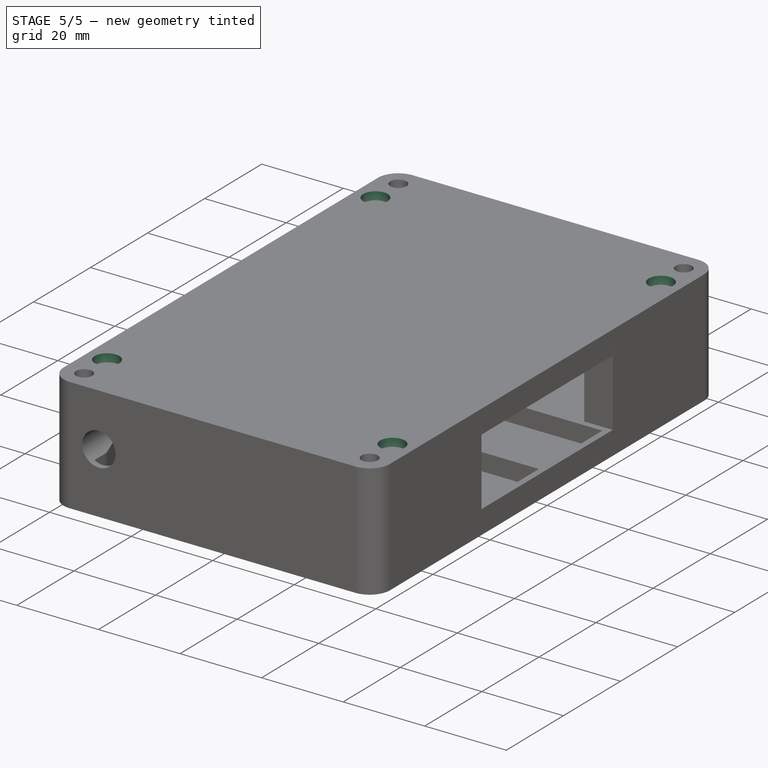
[diagram: stage 5 of 5 — iso view after this stage's code; geometry added in this stage tinted green]
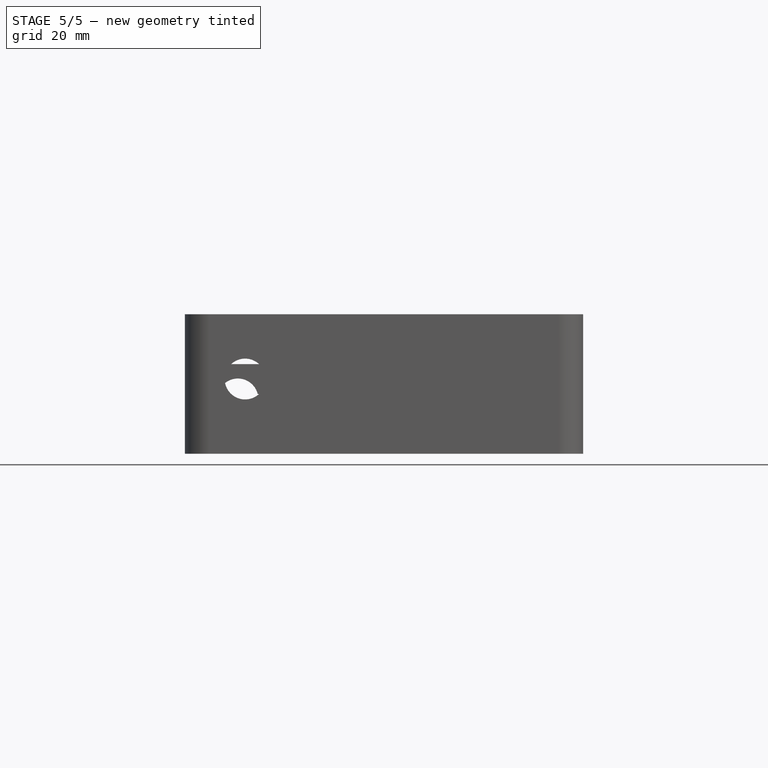
[diagram: stage 5 of 5 — front view after this stage's code; geometry added in this stage tinted green]
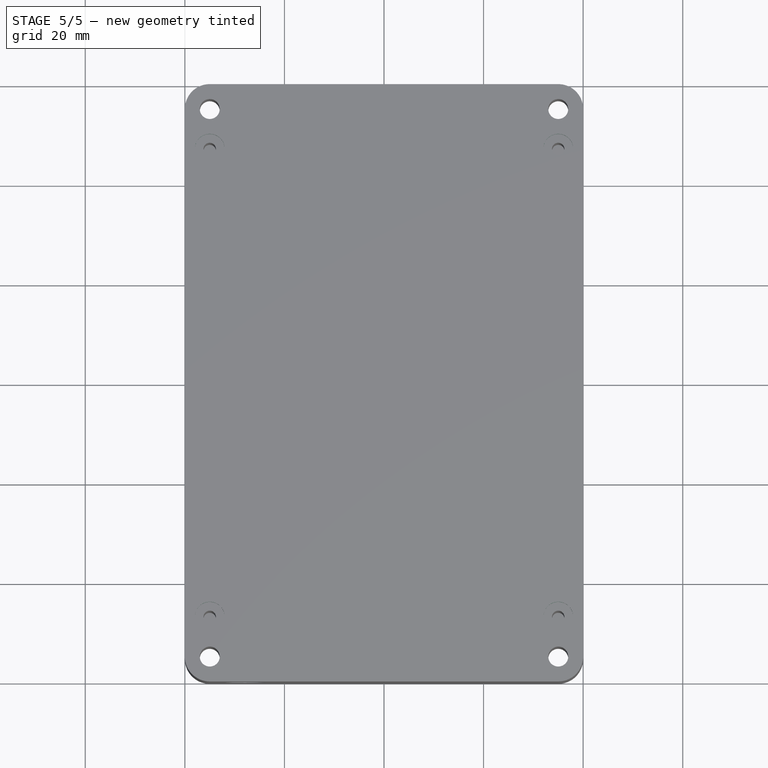
[diagram: stage 5 of 5 — top view after this stage's code; geometry added in this stage tinted green]
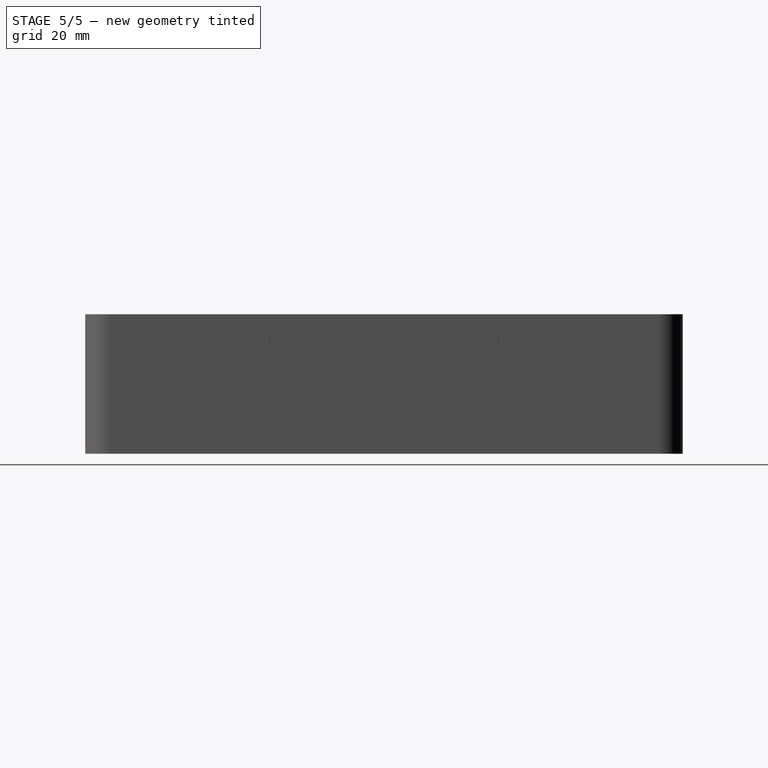
[diagram: stage 5 of 5 — right view after this stage's code; geometry added in this stage tinted green]
FEATURE [Sketcher::SketchObject] Sketch008  label="2_ScrewCounterboreHole_Sketch"
  ExternalGeometry = -> [Pad003]
  Placement = pos=(0,0,28) rot=(0,0,1;0rad)
  Support = -> Pad003 [Face18]
  sketch-geometry (4):
    g0: Circle CenterX=-35 CenterY=47 CenterZ=0 NormalX=0 NormalY=0 NormalZ=1 Radius=3
    g1: Circle CenterX=-35 CenterY=-47 CenterZ=0 NormalX=0 NormalY=0 NormalZ=1 Radius=3
    g2: Circle CenterX=35 CenterY=47 CenterZ=0 NormalX=0 NormalY=0 NormalZ=1 Radius=3
    g3: Circle CenterX=35 CenterY=-47 CenterZ=0 NormalX=0 NormalY=0 NormalZ=1 Radius=3
  constraints (8):
    c: Coincident(g0,g-3)
    c: Coincident(g1,g-5)
    c: Coincident(g2,g-4)
    c: Coincident(g3,g-6)
    c: Radius(g0) = 3
    c: Equal(g0,g2)
    c: Equal(g0,g1)
    c: Equal(g0,g3)
FEATURE [PartDesign::Pocket] Pocket004  label="2_ScrewCounterboreHole_Pocket"
  Length = 3
  Placement = pos=(0,0,22.5) rot=(0,0,1;0rad)
  Sketch = -> Sketch008
  Type = 0
FEATURE [Sketcher::SketchObject] Sketch011  label="3_InsideSpace_Sketch"
  ExternalGeometry = -> [Pocket004]
  Placement = pos=(0,0,22.5) rot=(1,0,0;3.14159rad)
  Support = -> Pocket004 [Face4]
  sketch-geometry (24):
    g0: ArcOfCircle CenterX=-35 CenterY=47 CenterZ=0 NormalX=0 NormalY=0 NormalZ=1 Radius=4.6 StartAngle=4.71239 EndAngle=6.0305
    g1: ArcOfCircle CenterX=-35 CenterY=55 CenterZ=0 NormalX=0 NormalY=0 NormalZ=1 Radius=6.6 StartAngle=6.03051 EndAngle=6.28319
    g2: LineSegment StartX=-28.6096 StartY=53.35 StartZ=0 EndX=-30.5461 EndY=45.85 EndZ=0
    g3: ArcOfCircle CenterX=35 CenterY=55 CenterZ=0 NormalX=0 NormalY=0 NormalZ=1 Radius=6.6 StartAngle=3.14159 EndAngle=3.39427
    g4: ArcOfCircle CenterX=35 CenterY=47 CenterZ=0 NormalX=0 NormalY=0 NormalZ=1 Radius=4.6 StartAngle=3.39428 EndAngle=4.71239
    g5: ArcOfCircle CenterX=-35 CenterY=-47 CenterZ=0 NormalX=0 NormalY=0 NormalZ=1 Radius=4.6 StartAngle=0.252685 EndAngle=1.5708
    g6: ArcOfCircle CenterX=35 CenterY=-47 CenterZ=0 NormalX=0 NormalY=0 NormalZ=1 Radius=4.6 StartAngle=1.5708 EndAngle=2.88891
    g7: ArcOfCircle CenterX=35 CenterY=-55 CenterZ=0 NormalX=0 NormalY=0 NormalZ=1 Radius=6.6 StartAngle=2.88891 EndAngle=3.14159
    g8: ArcOfCircle CenterX=-35 CenterY=-55 CenterZ=0 NormalX=0 NormalY=0 NormalZ=1 Radius=6.6 StartAngle=0 EndAngle=0.252679
    g9: LineSegment StartX=28.6096 StartY=53.35 StartZ=0 EndX=30.5461 EndY=45.85 EndZ=0
    g10: LineSegment StartX=-30.5461 StartY=-45.85 StartZ=0 EndX=-28.6096 EndY=-53.35 EndZ=0
    g11: LineSegment StartX=30.5461 StartY=-45.85 StartZ=0 EndX=28.6096 EndY=-53.35 EndZ=0
    g12: LineSegment StartX=-35 StartY=42.4 StartZ=0 EndX=-36.9 EndY=42.4 EndZ=0
    g13: LineSegment StartX=-36.9 StartY=42.4 StartZ=0 EndX=-36.9 EndY=-42.4 EndZ=0
    g14: LineSegment StartX=-36.9 StartY=-42.4 StartZ=0 EndX=-35 EndY=-42.4 EndZ=0
    g15: LineSegment StartX=35 StartY=42.4 StartZ=0 EndX=36.9 EndY=42.4 EndZ=0
    g16: LineSegment StartX=36.9 StartY=42.4 StartZ=0 EndX=36.9 EndY=-42.4 EndZ=0
    g17: LineSegment StartX=36.9 StartY=-42.4 StartZ=0 EndX=35 EndY=-42.4 EndZ=0
    g18: LineSegment StartX=-28.4 StartY=55 StartZ=0 EndX=-28.4 EndY=56.9 EndZ=0
    g19: LineSegment StartX=-28.4 StartY=56.9 StartZ=0 EndX=28.4 EndY=56.9 EndZ=0
    g20: LineSegment StartX=28.4 StartY=56.9 StartZ=0 EndX=28.4 EndY=55 EndZ=0
    g21: LineSegment StartX=-28.4 StartY=-55 StartZ=0 EndX=-28.4 EndY=-56.9 EndZ=0
    g22: LineSegment StartX=-28.4 StartY=-56.9 StartZ=0 EndX=28.4 EndY=-56.9 EndZ=0
    g23: LineSegment StartX=28.4 StartY=-56.9 StartZ=0 EndX=28.4 EndY=-55 EndZ=0
  constraints (68):
    c: Coincident(g0,g-4)
    c: Coincident(g1,g-3)
    c: Coincident(g2,g1)
    c: Coincident(g2,g0)
    c: Tangent(g0,g2)
    c: Tangent(g2,g1)
    c: Radius(g1) = 6.6
    c: Radius(g0) = 4.6
    c: Coincident(g3,g-5)
    c: Coincident(g4,g-6)
    c: Coincident(g5,g-7)
    c: Coincident(g6,g-10)
    c: Coincident(g7,g-9)
    c: Coincident(g8,g-8)
    c: Equal(g0,g4)
    c: Equal(g4,g5)
    c: Equal(g5,g6)
    c: Equal(g1,g3)
    c: Equal(g3,g7)
    c: Equal(g7,g8)
    c: Coincident(g9,g3)
    c: Coincident(g9,g4)
    c: Coincident(g10,g5)
    c: Coincident(g10,g8)
    c: Coincident(g11,g6)
    c: Coincident(g11,g7)
    c: Tangent(g5,g10)
    c: Tangent(g10,g8)
    c: Tangent(g7,g11)
    c: Tangent(g6,g11)
    c: Tangent(g9,g4)
    c: Tangent(g3,g9)
    c: Tangent(g0,g12) = 1.5708
    c: Coincident(g12,g13)
    c: Vertical(g13)
    c: Coincident(g13,g14)
    c: Coincident(g14,g5)
    c: Horizontal(g12)
    c: Horizontal(g14)
    c: Tangent(g14,g5)
    c: Tangent(g4,g15) = -1.5708
    c: Coincident(g15,g16)
    c: Vertical(g16)
    c: Coincident(g16,g17)
    c: Coincident(g17,g6)
    c: Horizontal(g17)
    c: Tangent(g6,g17)
    c: Horizontal(g15)
    c: Tangent(g1,g18) = -1.5708
    c: Coincident(g18,g19)
    c: Horizontal(g19)
    c: Coincident(g19,g20)
    c: Coincident(g20,g3)
    c: Vertical(g18)
    c: Vertical(g20)
    c: Tangent(g8,g21) = 1.5708
    c: Coincident(g21,g22)
    c: Horizontal(g22)
    c: Coincident(g22,g23)
    c: Coincident(g23,g7)
    c: Vertical(g23)
    c: Tangent(g23,g7)
    c: Vertical(g21)
    c: DistanceX(g-12,g13) = 3.1
    c: DistanceY(g18,g-11) = 3.1
    c: Symmetric(g18,g21,g-1)
    c: Symmetric(g15,g12,g-2)
    c: Tangent(g3,g20)
FEATURE [PartDesign::Pocket] Pocket005  label="3_InsideSpace_Pocket"
  Length = 4
  Placement = pos=(0,0,22.5) rot=(0,0,1;0rad)
  Sketch = -> Sketch011
  Type = 0
FEATURE [Sketcher::SketchObject] Sketch012  label="4_Lip_Sketch"
  ExternalGeometry = -> [Pocket004]
  Placement = pos=(0,0,22.5) rot=(1,0,0;3.14159rad)
  Support = -> Pocket005 [Face4]
  sketch-geometry (32):
    g0: ArcOfCircle CenterX=-35 CenterY=47 CenterZ=0 NormalX=0 NormalY=0 NormalZ=1 Radius=3.1 StartAngle=4.71239 EndAngle=6.03051
    g1: ArcOfCircle CenterX=-35 CenterY=55 CenterZ=0 NormalX=0 NormalY=0 NormalZ=1 Radius=5.1 StartAngle=6.0305 EndAngle=6.28319
    g2: LineSegment StartX=-30.0619 StartY=53.725 StartZ=0 EndX=-31.9984 EndY=46.225 EndZ=0
    g3: ArcOfCircle CenterX=35 CenterY=55 CenterZ=0 NormalX=0 NormalY=0 NormalZ=1 Radius=5.1 StartAngle=3.14159 EndAngle=3.39427
    g4: ArcOfCircle CenterX=35 CenterY=47 CenterZ=0 NormalX=0 NormalY=0 NormalZ=1 Radius=3.1 StartAngle=3.39427 EndAngle=4.71239
    g5: ArcOfCircle CenterX=-35 CenterY=-47 CenterZ=0 NormalX=0 NormalY=0 NormalZ=1 Radius=3.1 StartAngle=0.25268 EndAngle=1.5708
    g6: ArcOfCircle CenterX=35 CenterY=-47 CenterZ=0 NormalX=0 NormalY=0 NormalZ=1 Radius=3.1 StartAngle=1.5708 EndAngle=2.88891
    g7: ArcOfCircle CenterX=35 CenterY=-55 CenterZ=0 NormalX=0 NormalY=0 NormalZ=1 Radius=5.1 StartAngle=2.88891 EndAngle=3.14159
    g8: ArcOfCircle CenterX=-35 CenterY=-55 CenterZ=0 NormalX=0 NormalY=0 NormalZ=1 Radius=5.1 StartAngle=0 EndAngle=0.25268
    g9: LineSegment StartX=30.0619 StartY=53.725 StartZ=0 EndX=31.9984 EndY=46.225 EndZ=0
    g10: LineSegment StartX=-31.9984 StartY=-46.225 StartZ=0 EndX=-30.0619 EndY=-53.725 EndZ=0
    g11: LineSegment StartX=31.9984 StartY=-46.225 StartZ=0 EndX=30.0619 EndY=-53.725 EndZ=0
    g12: LineSegment StartX=-35 StartY=43.9 StartZ=0 EndX=-38.4 EndY=43.9 EndZ=0
    g13: LineSegment StartX=-38.4 StartY=43.9 StartZ=0 EndX=-38.4 EndY=-43.9 EndZ=0
    g14: LineSegment StartX=-38.4 StartY=-43.9 StartZ=0 EndX=-35 EndY=-43.9 EndZ=0
    g15: LineSegment StartX=35 StartY=43.9 StartZ=0 EndX=38.4 EndY=43.9 EndZ=0
    g16: LineSegment StartX=38.4 StartY=43.9 StartZ=0 EndX=38.4 EndY=24.6 EndZ=0
    g17: LineSegment StartX=38.4 StartY=-43.9 StartZ=0 EndX=35 EndY=-43.9 EndZ=0
    g18: LineSegment StartX=-29.9 StartY=55 StartZ=0 EndX=-29.9 EndY=58.4 EndZ=0
    g19: LineSegment StartX=-29.9 StartY=58.4 StartZ=0 EndX=29.9 EndY=58.4 EndZ=0
    g20: LineSegment StartX=29.9 StartY=58.4 StartZ=0 EndX=29.9 EndY=55 EndZ=0
    g21: LineSegment StartX=-29.9 StartY=-55 StartZ=0 EndX=-29.9 EndY=-58.4 EndZ=0
    g22: LineSegment StartX=-29.9 StartY=-58.4 StartZ=0 EndX=29.9 EndY=-58.4 EndZ=0
    g23: LineSegment StartX=29.9 StartY=-58.4 StartZ=0 EndX=29.9 EndY=-55 EndZ=0
    g24: LineSegment StartX=-41 StartY=61 StartZ=0 EndX=41 EndY=61 EndZ=0
    g25: LineSegment StartX=41 StartY=61 StartZ=0 EndX=41 EndY=-61 EndZ=0
    g26: LineSegment StartX=41 StartY=-61 StartZ=0 EndX=-41 EndY=-61 EndZ=0
    g27: LineSegment StartX=-41 StartY=-61 StartZ=0 EndX=-41 EndY=61 EndZ=0
    g28: LineSegment StartX=38.4 StartY=24.6 StartZ=0 EndX=35.8 EndY=24.6 EndZ=0
    g29: LineSegment StartX=35.8 StartY=24.6 StartZ=0 EndX=35.8 EndY=-24.6 EndZ=0
    g30: LineSegment StartX=35.8 StartY=-24.6 StartZ=0 EndX=38.4 EndY=-24.6 EndZ=0
    g31: LineSegment StartX=38.4 StartY=-24.6 StartZ=0 EndX=38.4 EndY=-43.9 EndZ=0
  constraints (91):
    c: Coincident(g0,g-4)
    c: Coincident(g1,g-3)
    c: Coincident(g2,g1)
    c: Coincident(g2,g0)
    c: Tangent(g0,g2)
    c: Tangent(g2,g1)
    c: Radius(g1) = 5.1
    c: Radius(g0) = 3.1
    c: Coincident(g3,g-5)
    c: Coincident(g4,g-6)
    c: Coincident(g5,g-7)
    c: Coincident(g6,g-10)
    c: Coincident(g7,g-9)
    c: Coincident(g8,g-8)
    c: Equal(g0,g4)
    c: Equal(g4,g5)
    c: Equal(g5,g6)
    c: Equal(g1,g3)
    c: Equal(g3,g7)
    c: Equal(g7,g8)
    c: Coincident(g9,g3)
    c: Coincident(g9,g4)
    c: Coincident(g10,g5)
    c: Coincident(g10,g8)
    c: Coincident(g11,g6)
    c: Coincident(g11,g7)
    c: Tangent(g5,g10)
    c: Tangent(g10,g8)
    c: Tangent(g7,g11)
    c: Tangent(g6,g11)
    c: Tangent(g9,g4)
    c: Tangent(g3,g9)
    c: Tangent(g0,g12) = 1.5708
    c: Coincident(g12,g13)
    c: Vertical(g13)
    c: Coincident(g13,g14)
    c: Coincident(g14,g5)
    c: Horizontal(g12)
    c: Horizontal(g14)
    c: Tangent(g14,g5)
    c: Tangent(g4,g15) = -1.5708
    c: Coincident(g15,g16)
    c: Vertical(g16)
    c: Coincident(g31,g17)
    c: Coincident(g17,g6)
    c: Horizontal(g17)
    c: Tangent(g6,g17)
    c: Horizontal(g15)
    c: Tangent(g1,g18) = -1.5708
    c: Coincident(g18,g19)
    c: Horizontal(g19)
    c: Coincident(g19,g20)
    c: Coincident(g20,g3)
    c: Vertical(g18)
    c: Vertical(g20)
    c: Tangent(g8,g21) = 1.5708
    c: Coincident(g21,g22)
    c: Horizontal(g22)
    c: Coincident(g22,g23)
    c: Coincident(g23,g7)
    c: Vertical(g23)
    c: Tangent(g23,g7)
    c: Vertical(g21)
    c: DistanceX(g-12,g13) = 1.6
    c: DistanceY(g18,g-11) = 1.6
    c: Symmetric(g18,g21,g-1)
    c: Symmetric(g15,g12,g-2)
    c: Tangent(g3,g20)
    c: Coincident(g24,g25)
    c: Coincident(g25,g26)
    c: Coincident(g26,g27)
    c: Coincident(g27,g24)
    c: Horizontal(g24)
    c: Horizontal(g26)
    c: Vertical(g25)
    c: Vertical(g27)
    c: Symmetric(g26,g25,g-2)
    c: Symmetric(g25,g24,g-1)
    c: DistanceX(g-11,g24) = 6
    c: DistanceY(g3,g24) = 6
    c: Horizontal(g28)
    c: Coincident(g28,g29)
    c: Vertical(g29)
    c: Coincident(g29,g30)
    c: Horizontal(g30)
    c: Coincident(g16,g28)
    c: Coincident(g31,g30)
    c: Symmetric(g16,g30,g-1)
    c: DistanceY(g29,g29) = 49.2
    c: DistanceX(g30,g30) = 2.6
    c: Vertical(g31)
FEATURE [PartDesign::Pocket] Pocket006  label="4_Lip_Pocket"
  Length = 1.5
  Placement = pos=(0,0,22.5) rot=(0,0,1;0rad)
  Sketch = -> Sketch012
  Type = 0
FEATURE [Sketcher::SketchObject] Sketch013  label="5_LidCircuitBreakerSupport_Sketch"
  Placement = pos=(0,0,26.5) rot=(1,0,0;3.14159rad)
  Support = -> Pocket006 [Face56]
  sketch-geometry (30):
    g0: LineSegment StartX=-18.65 StartY=35 StartZ=0 EndX=-18.65 EndY=-35 EndZ=0
    g1: LineSegment StartX=-18.65 StartY=-35 StartZ=0 EndX=9.35 EndY=-35 EndZ=0
    g2: LineSegment StartX=9.35 StartY=-35 StartZ=0 EndX=9.35 EndY=-22.9 EndZ=0
    g3: LineSegment StartX=9.35 StartY=-22.9 StartZ=0 EndX=40 EndY=-22.9 EndZ=0
    g4: LineSegment StartX=40 StartY=-22.9 StartZ=0 EndX=40 EndY=22.9 EndZ=0
    g5: LineSegment StartX=40 StartY=22.9 StartZ=0 EndX=9.35 EndY=22.9 EndZ=0
    g6: LineSegment StartX=9.35 StartY=35 StartZ=0 EndX=-18.65 EndY=35 EndZ=0
    g7: LineSegment StartX=-17.15 StartY=33.5 StartZ=0 EndX=7.85 EndY=33.5 EndZ=0
    g8: LineSegment StartX=7.85 StartY=33.5 StartZ=0 EndX=7.85 EndY=22.9 EndZ=0
    g9: LineSegment StartX=7.85 StartY=22.9 StartZ=0 EndX=-17.15 EndY=22.9 EndZ=0
    g10: LineSegment StartX=-17.15 StartY=22.9 StartZ=0 EndX=-17.15 EndY=33.5 EndZ=0
    g11: LineSegment StartX=-17.15 StartY=21.4 StartZ=0 EndX=38.5 EndY=21.4 EndZ=0
    g12: LineSegment StartX=38.5 StartY=21.4 StartZ=0 EndX=38.5 EndY=0.75 EndZ=0
    g13: LineSegment StartX=38.5 StartY=0.75 StartZ=0 EndX=-17.15 EndY=0.75 EndZ=0
    g14: LineSegment StartX=-17.15 StartY=0.75 StartZ=0 EndX=-17.15 EndY=21.4 EndZ=0
    g15: LineSegment StartX=-17.15 StartY=-0.75 StartZ=0 EndX=38.5 EndY=-0.75 EndZ=0
    g16: LineSegment StartX=38.5 StartY=-0.75 StartZ=0 EndX=38.5 EndY=-21.4 EndZ=0
    g17: LineSegment StartX=38.5 StartY=-21.4 StartZ=0 EndX=-17.15 EndY=-21.4 EndZ=0
    g18: LineSegment StartX=-17.15 StartY=-21.4 StartZ=0 EndX=-17.15 EndY=-0.75 EndZ=0
    g19: LineSegment StartX=-17.15 StartY=-22.9 StartZ=0 EndX=7.85 EndY=-22.9 EndZ=0
    g20: LineSegment StartX=7.85 StartY=-22.9 StartZ=0 EndX=7.85 EndY=-33.5 EndZ=0
    g21: LineSegment StartX=7.85 StartY=-33.5 StartZ=0 EndX=-17.15 EndY=-33.5 EndZ=0
    g22: LineSegment StartX=-17.15 StartY=-33.5 StartZ=0 EndX=-17.15 EndY=-22.9 EndZ=0
    g23: LineSegment [constr] StartX=-17.15 StartY=22.9 StartZ=0 EndX=-17.15 EndY=21.4 EndZ=0
    g24: LineSegment [constr] StartX=-17.15 StartY=33.5 StartZ=0 EndX=-18.65 EndY=33.5 EndZ=0
    g25: LineSegment [constr] StartX=7.85 StartY=33.5 StartZ=0 EndX=9.35 EndY=33.5 EndZ=0
    g26: LineSegment [constr] StartX=-17.15 StartY=33.5 StartZ=0 EndX=-17.15 EndY=35 EndZ=0
    g27: LineSegment [constr] StartX=-17.15 StartY=0.75 StartZ=0 EndX=-17.15 EndY=-0.75 EndZ=0
    g28: LineSegment StartX=9.35 StartY=35 StartZ=0 EndX=9.35 EndY=22.9 EndZ=0
    g29: LineSegment [constr] StartX=38.5 StartY=21.4 StartZ=0 EndX=40 EndY=21.4 EndZ=0
  constraints (83):
    c: Vertical(g0)
    c: Coincident(g0,g1)
    c: Horizontal(g1)
    c: Coincident(g1,g2)
    c: Vertical(g2)
    c: Coincident(g2,g3)
    c: Horizontal(g3)
    c: Coincident(g3,g4)
    c: Vertical(g4)
    c: Coincident(g4,g5)
    c: Horizontal(g5)
    c: Coincident(g6,g0)
    c: Horizontal(g6)
    c: Symmetric(g0,g0,g-1)
    c: Symmetric(g2,g5,g-1)
    c: Coincident(g7,g8)
    c: Coincident(g8,g9)
    c: Coincident(g9,g10)
    c: Coincident(g10,g7)
    c: Horizontal(g7)
    c: Horizontal(g9)
    c: Vertical(g8)
    c: Vertical(g10)
    c: Coincident(g11,g12)
    c: Coincident(g12,g13)
    c: Coincident(g13,g14)
    c: Coincident(g14,g11)
    c: Horizontal(g11)
    c: Horizontal(g13)
    c: Vertical(g12)
    c: Vertical(g14)
    c: Coincident(g15,g16)
    c: Coincident(g16,g17)
    c: Coincident(g17,g18)
    c: Coincident(g18,g15)
    c: Horizontal(g15)
    c: Horizontal(g17)
    c: Vertical(g16)
    c: Vertical(g18)
    c: Coincident(g19,g20)
    c: Coincident(g20,g21)
    c: Coincident(g21,g22)
    c: Coincident(g22,g19)
    c: Horizontal(g19)
    c: Horizontal(g21)
    c: Vertical(g20)
    c: Vertical(g22)
    c: Symmetric(g15,g13,g-1)
    c: Symmetric(g16,g11,g-1)
    c: PointOnObject(g19,g18)
    c: Symmetric(g19,g9,g-1)
    c: Symmetric(g7,g20,g-1)
    c: Coincident(g23,g9)
    c: Coincident(g23,g11)
    c: Coincident(g24,g7)
    c: PointOnObject(g24,g0)
    c: Horizontal(g24)
    c: Coincident(g25,g7)
    c: Horizontal(g25)
    c: Coincident(g26,g7)
    c: PointOnObject(g26,g6)
    c: Vertical(g26)
    c: DistanceY(g26,g26) = 1.5
    c: Equal(g26,g25)
    c: Equal(g25,g23)
    c: Equal(g24,g26)
    c: PointOnObject(g5,g9)
    c: DistanceY(g0,g0) = 70
    c: DistanceX(g0,g3) = 58.65
    c: DistanceX(g-1,g3) = 40
    c: Coincident(g15,g27)
    c: Coincident(g13,g27)
    c: Equal(g27,g26)
    c: DistanceX(g6,g6) = 28
    c: Coincident(g28,g6)
    c: Coincident(g28,g5)
    c: Vertical(g28)
    c: PointOnObject(g25,g28)
    c: DistanceY(g4,g4) = 45.8
    c: Coincident(g29,g11)
    c: PointOnObject(g29,g4)
    c: Horizontal(g29)
    c: Equal(g29,g25)
FEATURE [PartDesign::Pad] Pad006  label="5_LidCircuitBreakerSupport_Pad"
  Length = 4.25
  Length2 = 100
  Placement = pos=(0,0,22.5) rot=(0,0,1;0rad)
  Sketch = -> Sketch013
  Type = 0
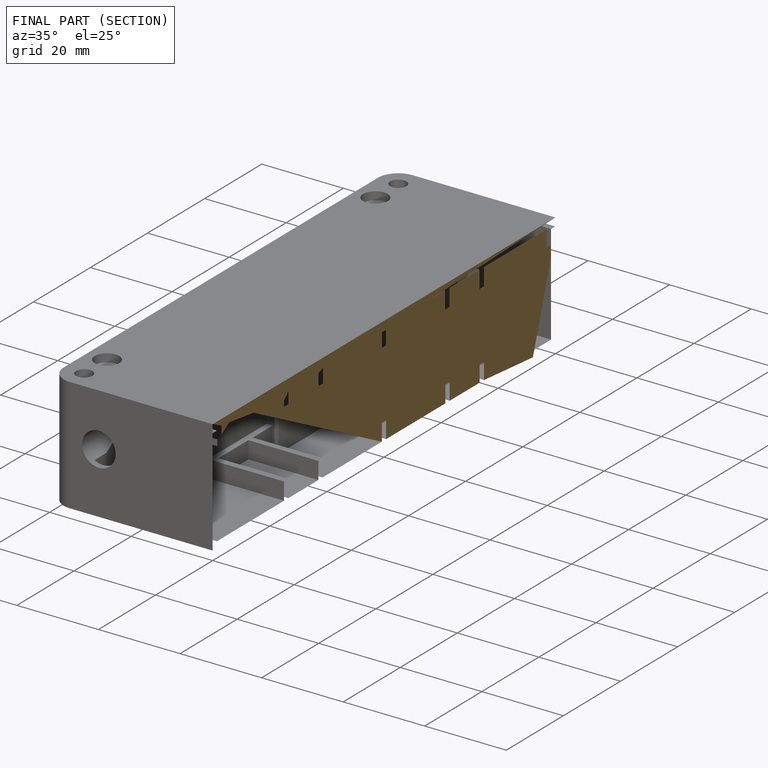
[diagram: finished part — half-section view (interior)]
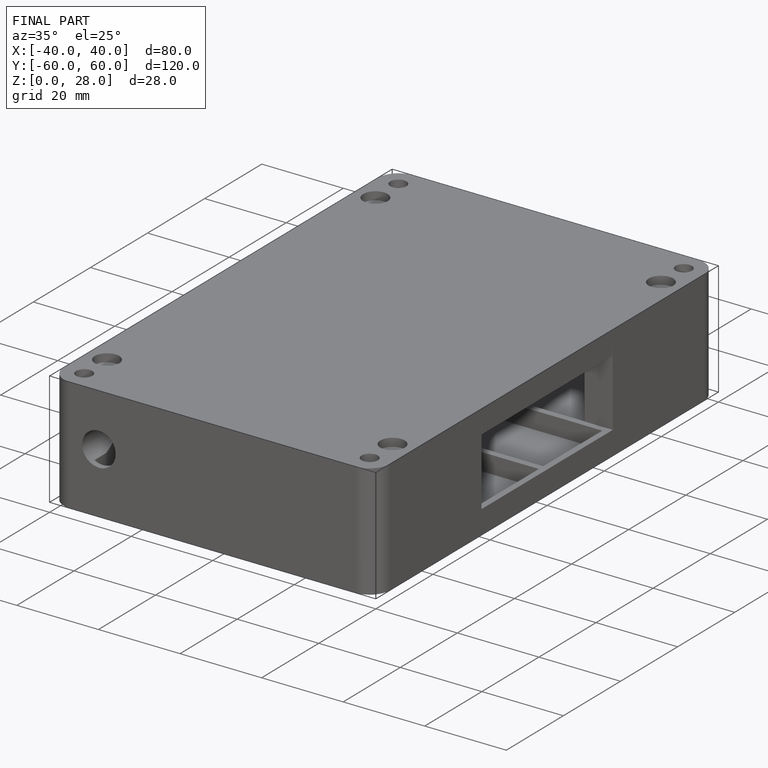
[diagram: finished part — iso view with bounding-box wireframe]
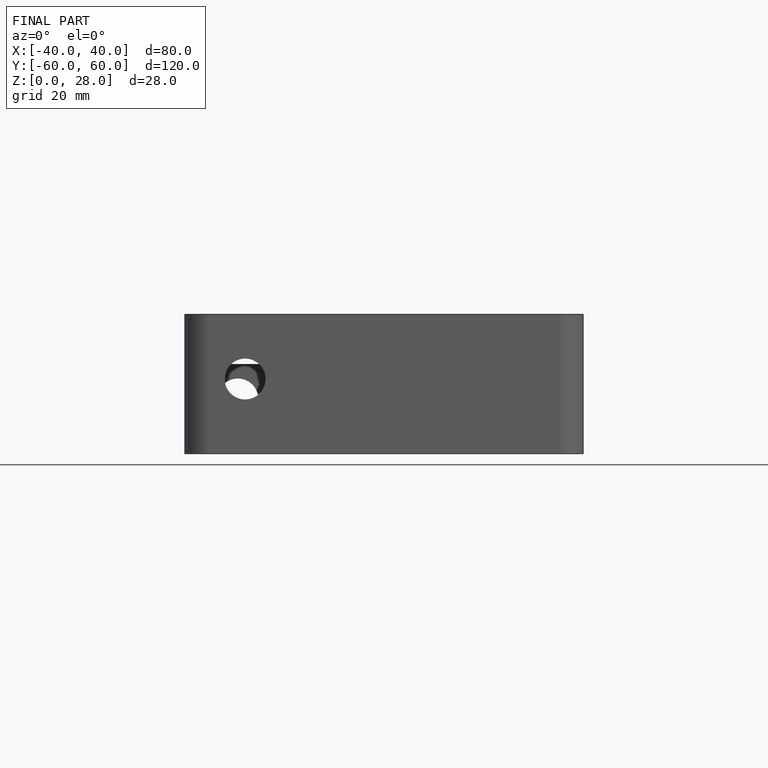
[diagram: finished part — front view with bounding-box wireframe]
